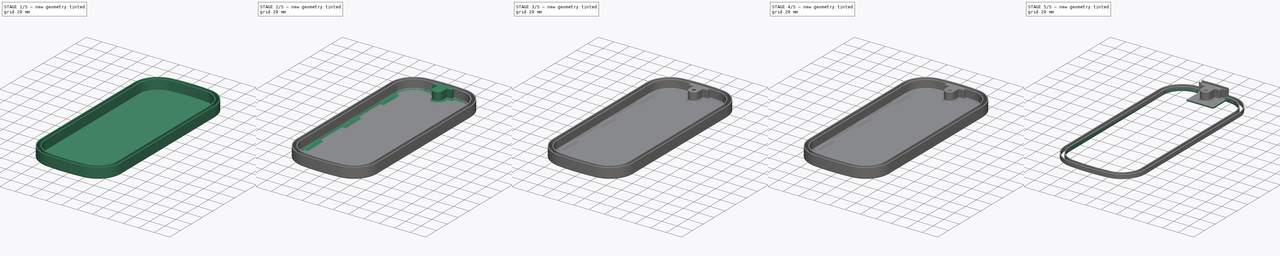
[diagram: build sequence overview — one tinted view per stage of 5, left to right]
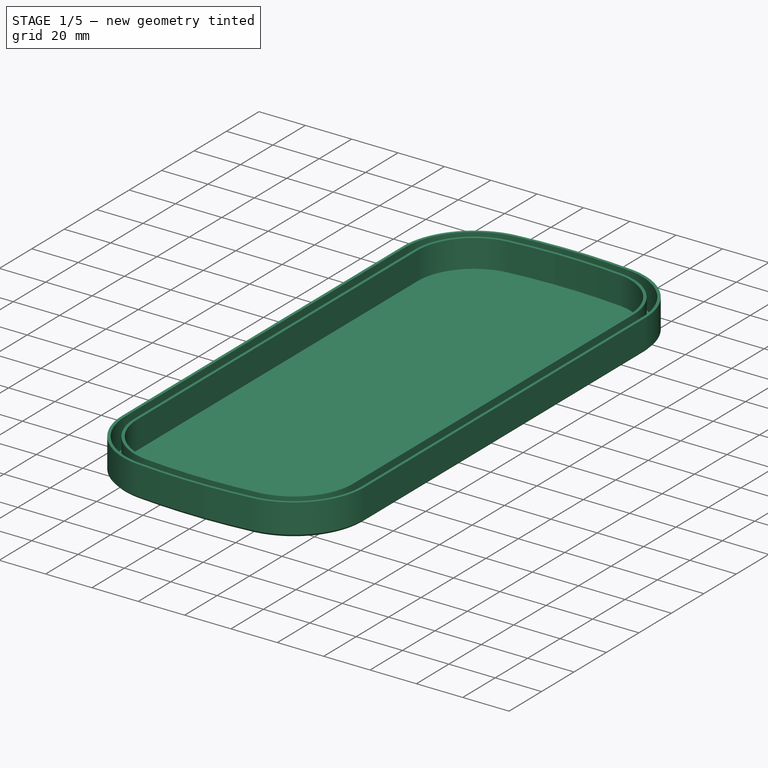
[diagram: stage 1 of 5 — iso view after this stage's code; geometry added in this stage tinted green]
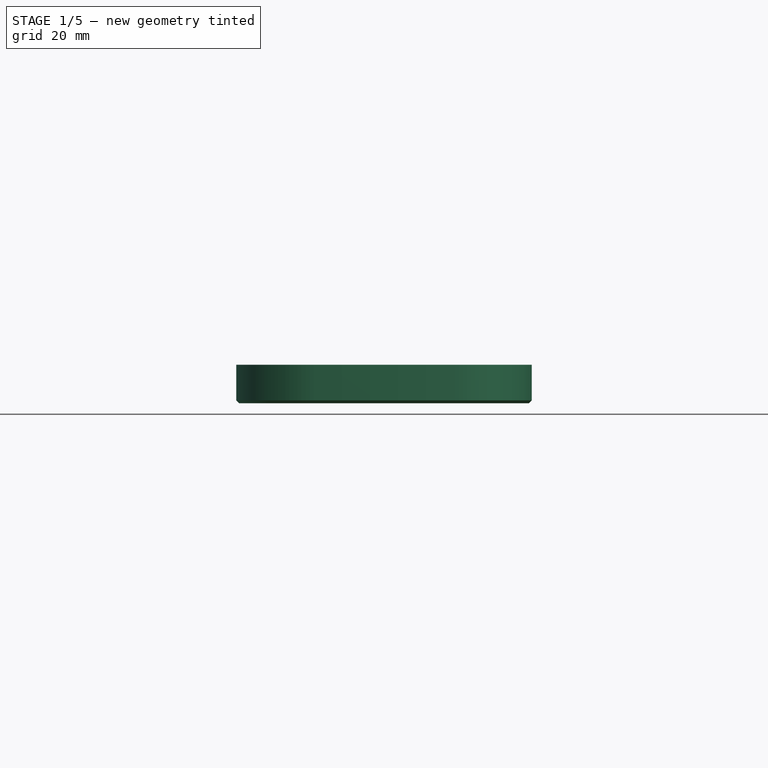
[diagram: stage 1 of 5 — front view after this stage's code; geometry added in this stage tinted green]
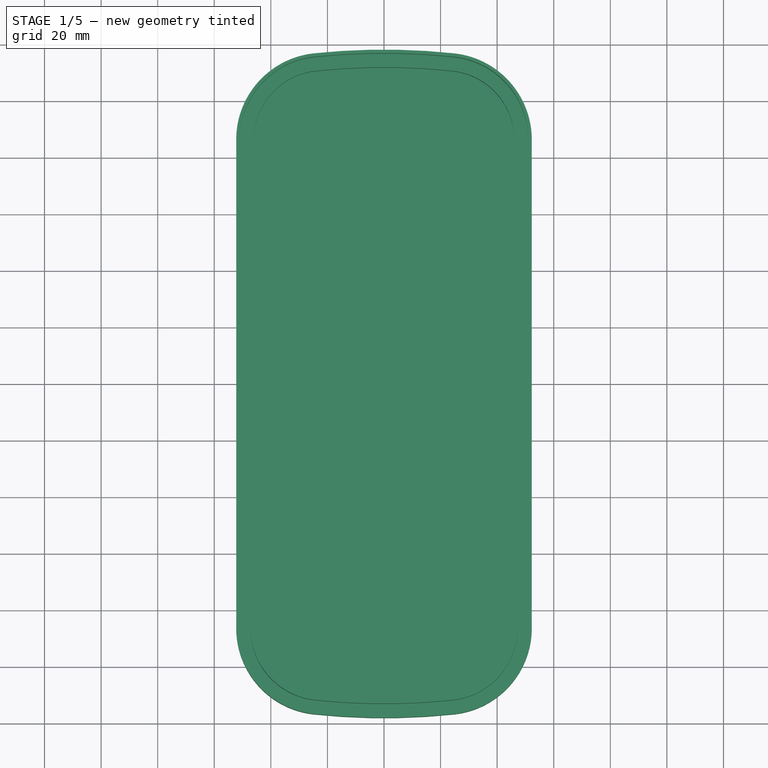
[diagram: stage 1 of 5 — top view after this stage's code; geometry added in this stage tinted green]
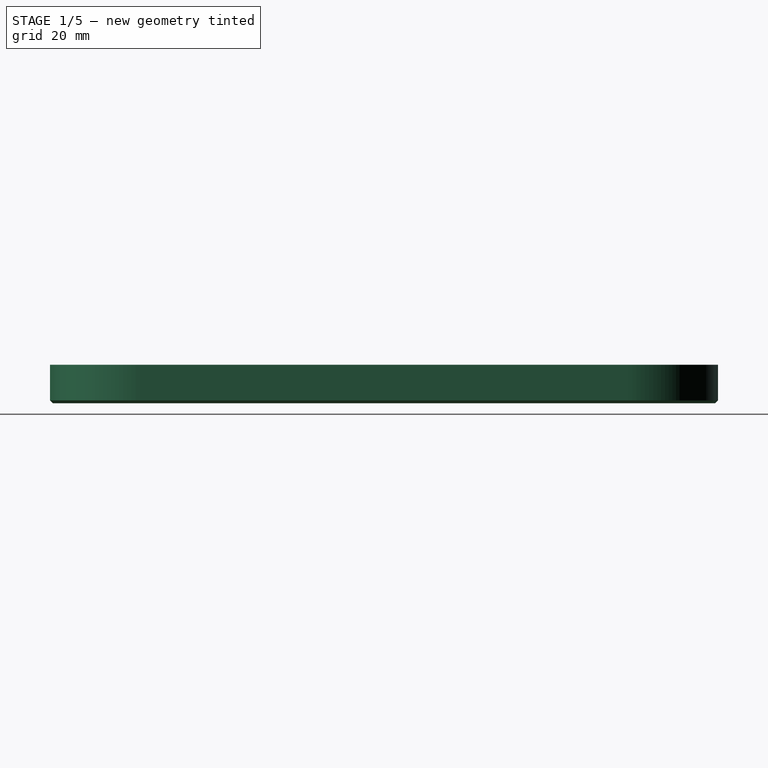
[diagram: stage 1 of 5 — right view after this stage's code; geometry added in this stage tinted green]
FCSTD DOCUMENT  (FreeCAD 1.1R44874 (Git))
Label: DryBoxLid
License: All rights reserved
LicenseURL: https://en.wikipedia.org/wiki/All_rights_reserved
objects: Sketcher::SketchObject×12, PartDesign::Pad×6, App::Point×4, PartDesign::Body×4, PartDesign::ShapeBinder×4, PartDesign::Chamfer×4, PartDesign::Pocket×3, Spreadsheet::Sheet×2, PartDesign::Fillet×1, PartDesign::Hole×1, PartDesign::FeatureBase×1
note: 79 computed .brp shape members not serialized (recipe doc carries the construction recipe); baked Part::Feature solids carry a one-line shape summary decoded from their .brp

FEATURE [PartDesign::Body] Body001  label="LidTest"
  AllowCompound = true
  Group = -> [ShapeBinder,Sketch006,Pad003,Sketch007,Pad004]
  Origin = -> Origin002
  Tip = -> Pad004
FEATURE [PartDesign::ShapeBinder] ShapeBinder002
  Support = -> [Sketch008]
  TraceSupport = false
FEATURE [Sketcher::SketchObject] Sketch009  label="Base"
  ArcFitTolerance = 1e-06
  AttachmentSupport = -> [Origin004]
  ExternalGeometry = -> [ShapeBinder002]
  ExternalTypes = [0,0,0,0,0,0,0,0]
  FullyConstrained = true
  MakeInternals = false
  MapMode = 5
  _ExternalGeoVersion = 1
FEATURE [PartDesign::Pad] Pad005  label="Base_"
  Direction = (0,0,1)
  Length = 1.6
  Length2 = 10
  Profile = -> Sketch009
  ReferenceAxis = -> Sketch009 [N_Axis]
  Refine = true
  SideType = 0
  Suppressed = false
  Type = 0
  Type2 = 0
  expr: Length = <<Lid_>>.Thickness
FEATURE [Sketcher::SketchObject] Sketch010  label="Rim"
  ArcFitTolerance = 1e-06
  AttachmentOffset = pos=(0,0,1.6) rot=(0,0,1;0rad)
  AttachmentSupport = -> [Origin004]
  ExternalGeometry = -> [ShapeBinder002]
  ExternalTypes = [0,0,0,0,0,0,0,0,0,0,0,0,0,0,0,0,0,0,0,0,0,0,0,0,0,0,0,0,0,0,0,0]
  FullyConstrained = true
  MakeInternals = false
  MapMode = 5
  Placement = pos=(0,0,1.6) rot=(0,0,1;0rad)
  _ExternalGeoVersion = 1
  expr: .AttachmentOffset.Base.z = <<Base_>>.Length
FEATURE [PartDesign::Chamfer] Chamfer001
  Angle = 45
  Base = -> Pad005 [Edge12]
  BaseFeature = -> Pad005
  ChamferType = 0
  FlipDirection = false
  Refine = true
  Size = 1
  Size2 = 1
  SupportTransform = false
  Suppressed = false
  UseAllEdges = false
FEATURE [PartDesign::Pad] Pad006  label="Rim_"
  BaseFeature = -> Chamfer001
  Direction = (0,0,1)
  Length = 12
  Length2 = 10
  Profile = -> Sketch010
  ReferenceAxis = -> Sketch010 [N_Axis]
  Refine = true
  SideType = 0
  Suppressed = false
  Type = 0
  Type2 = 0
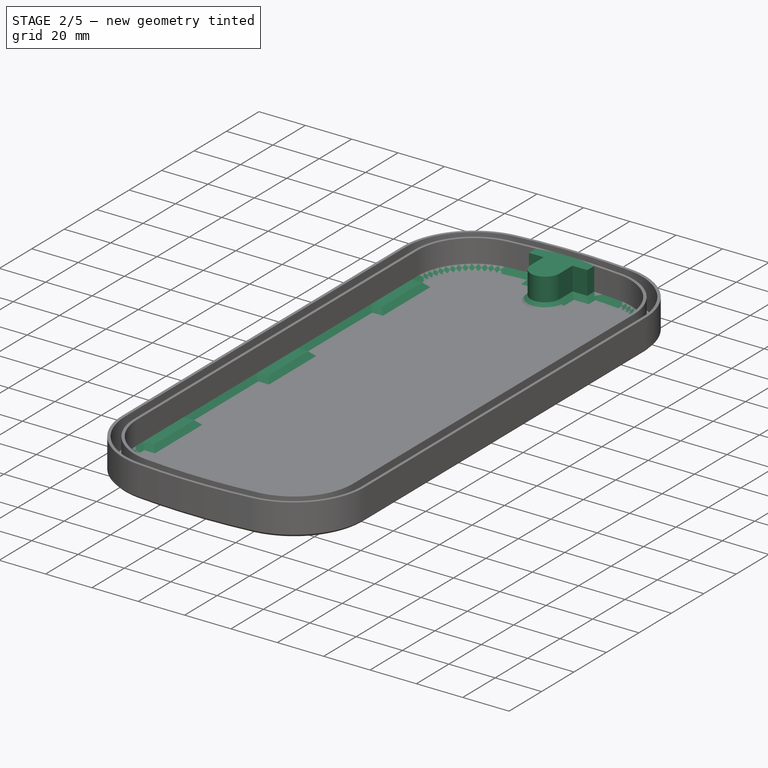
[diagram: stage 2 of 5 — iso view after this stage's code; geometry added in this stage tinted green]
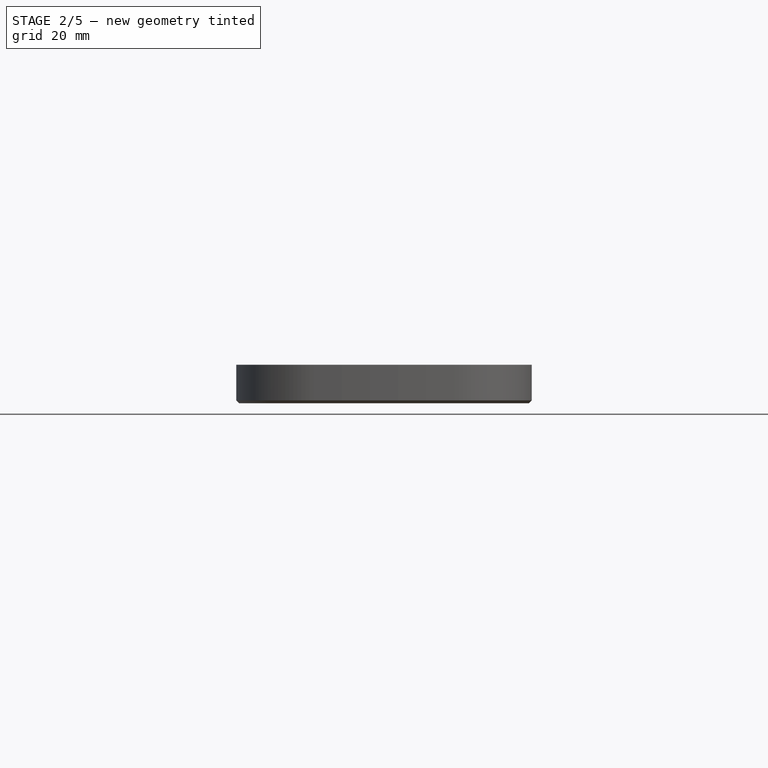
[diagram: stage 2 of 5 — front view after this stage's code; geometry added in this stage tinted green]
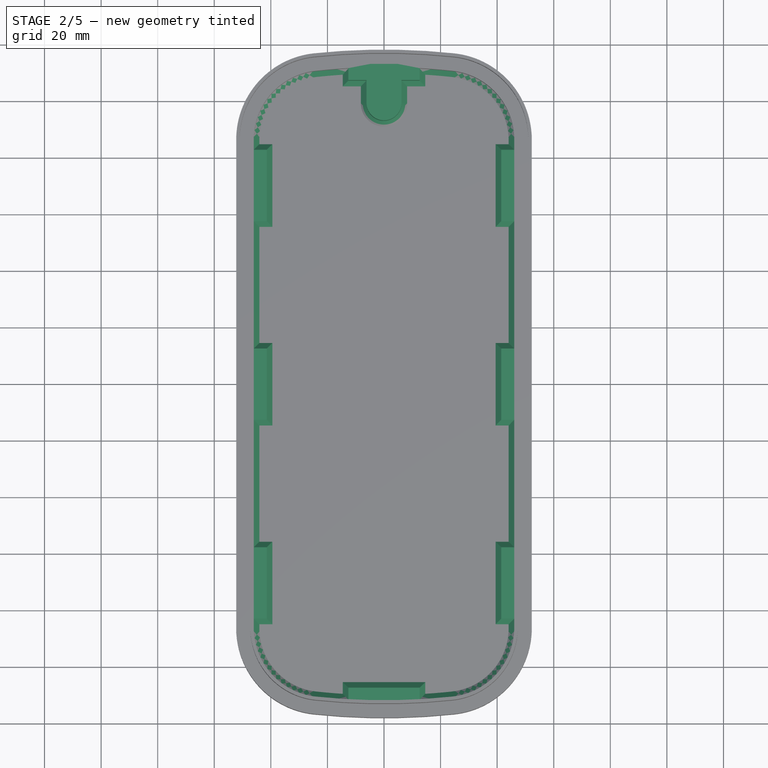
[diagram: stage 2 of 5 — top view after this stage's code; geometry added in this stage tinted green]
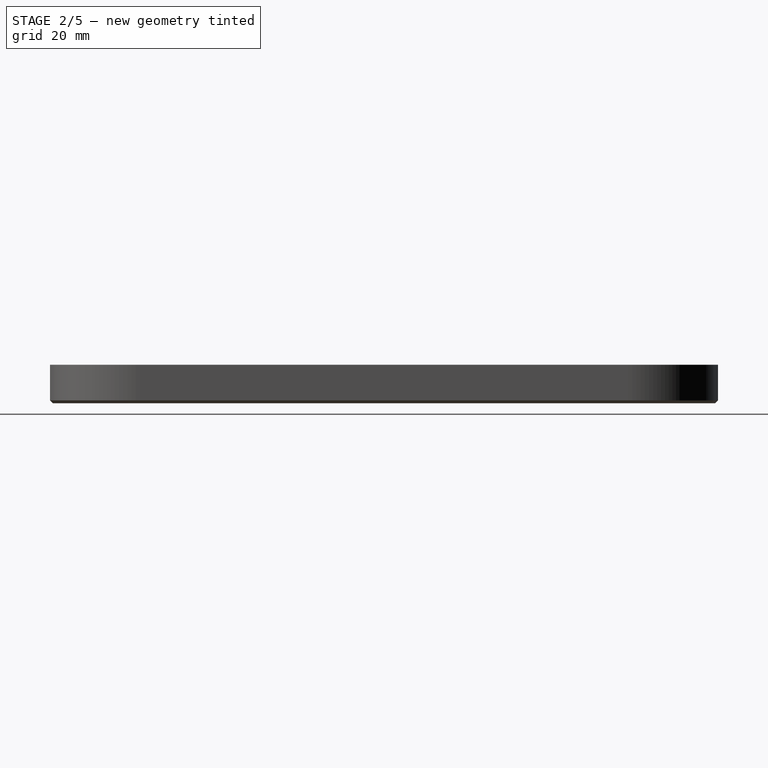
[diagram: stage 2 of 5 — right view after this stage's code; geometry added in this stage tinted green]
FEATURE [Sketcher::SketchObject] Sketch011  label="ClutchBumps"
  ArcFitTolerance = 1e-06
  AttachmentOffset = pos=(0,0,1.6) rot=(0,0,1;0rad)
  AttachmentSupport = -> [Sketch008]
  ExternalGeometry = -> [Sketch008]
  ExternalTypes = [0,0,0,0,0,0,0,0,0,0,0,0,0,0,0,0,0,0,0,0,0,0]
  FullyConstrained = true
  MakeInternals = false
  MapMode = 2
  Placement = pos=(0,0,1.6) rot=(0,0,1;0rad)
  _ExternalGeoVersion = 1
  expr: .AttachmentOffset.Base.z = <<Base_>>.Length
  sketch-geometry (6):
    g0: LineSegment StartX=46.0453 StartY=-82.85 StartZ=0 EndX=46.0453 EndY=-57.65 EndZ=0
    g1: LineSegment StartX=-46.0453 StartY=-82.85 StartZ=0 EndX=-46.0453 EndY=-57.65 EndZ=0
    g2: LineSegment StartX=-46.0453 StartY=-12.6 StartZ=0 EndX=-46.0453 EndY=12.6 EndZ=0
    g3: LineSegment StartX=46.0453 StartY=-12.6 StartZ=0 EndX=46.0453 EndY=12.6 EndZ=0
    g4: LineSegment StartX=46.0453 StartY=57.65 StartZ=0 EndX=46.0453 EndY=82.85 EndZ=0
    g5: LineSegment StartX=-46.0453 StartY=57.65 StartZ=0 EndX=-46.0453 EndY=82.85 EndZ=0
  constraints (12):
    c: Coincident(g0,g-22)
    c: Coincident(g0,g-24)
    c: Coincident(g1,g-17)
    c: Coincident(g1,g-15)
    c: Coincident(g2,g-12)
    c: Coincident(g2,g-14)
    c: Coincident(g3,g-11)
    c: Coincident(g3,g-9)
    c: Coincident(g4,g-8)
    c: Coincident(g4,g-6)
    c: Coincident(g5,g-5)
    c: Coincident(g5,g-3)
FEATURE [PartDesign::Pad] Pad007  label="ClutchBumps_"
  BaseFeature = -> Pad006
  Direction = (0,0,1)
  Length = 2
  Length2 = 10
  Profile = -> Sketch011
  ReferenceAxis = -> Sketch011 [N_Axis]
  Refine = true
  SideType = 0
  Suppressed = false
  Type = 0
  Type2 = 0
FEATURE [Sketcher::SketchObject] Sketch012  label="ClutchHoles"
  ArcFitTolerance = 1e-06
  AttachmentSupport = -> [Origin004]
  ExternalGeometry = -> [ShapeBinder002]
  ExternalTypes = [0,0,0,0,0,0,0,0,0,0,0,0,0,0,0,0,0,0,0,0,0,0,0,0,0,0,0,0,0,0,0,0]
  FullyConstrained = true
  MakeInternals = false
  MapMode = 5
  _ExternalGeoVersion = 1
FEATURE [Sketcher::SketchObject] Sketch013  label="InterfaceBump"
  ArcFitTolerance = 1e-06
  AttachmentOffset = pos=(0,0,1.6) rot=(0,0,1;0rad)
  AttachmentSupport = -> [Sketch008]
  ExternalGeometry = -> [Sketch008]
  ExternalTypes = [0,0,0,0,0,0,0,0]
  FullyConstrained = true
  MakeInternals = false
  MapMode = 2
  Placement = pos=(0,0,1.6) rot=(0,0,1;0rad)
  _ExternalGeoVersion = 1
  expr: .AttachmentOffset.Base.z = <<Base_>>.Length
FEATURE [PartDesign::Pad] Pad  label="InterfaceBump_"
  BaseFeature = -> Pad007
  Direction = (0,0,1)
  Length = 12
  Length2 = 10
  Profile = -> Sketch013
  ReferenceAxis = -> Sketch013 [N_Axis]
  Refine = true
  SideType = 0
  Suppressed = false
  Type = 0
  Type2 = 0
  expr: Length = <<Rim_>>.Length
FEATURE [PartDesign::Chamfer] Chamfer002
  Angle = 45
  Base = -> Pad [Face46]
  BaseFeature = -> Pad
  ChamferType = 0
  FlipDirection = false
  Refine = true
  Size = 1.99
  Size2 = 1
  SupportTransform = false
  Suppressed = false
  UseAllEdges = false
  expr: Size = <<ClutchBumps_>>.Length - 0.01 mm
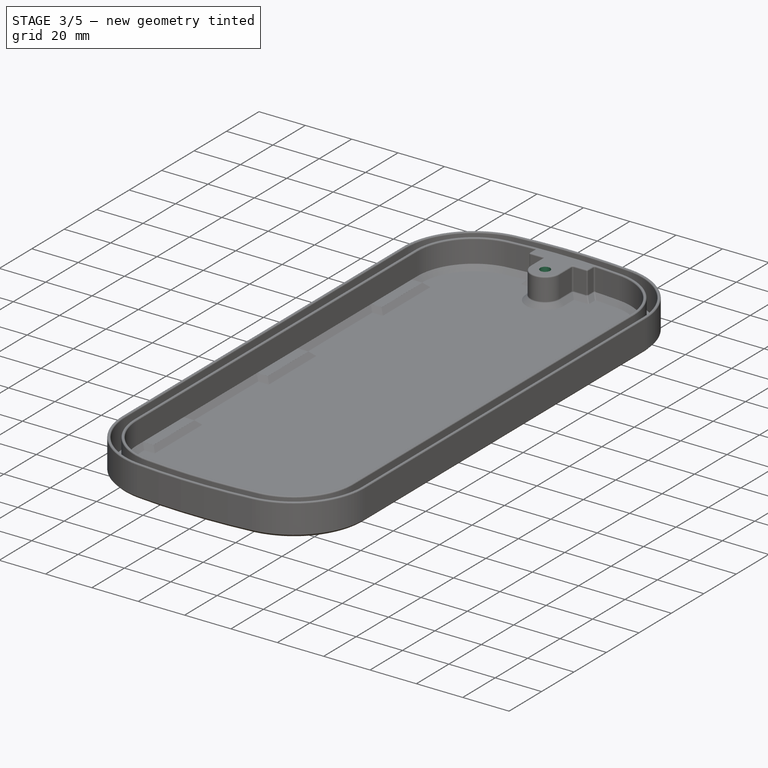
[diagram: stage 3 of 5 — iso view after this stage's code; geometry added in this stage tinted green]
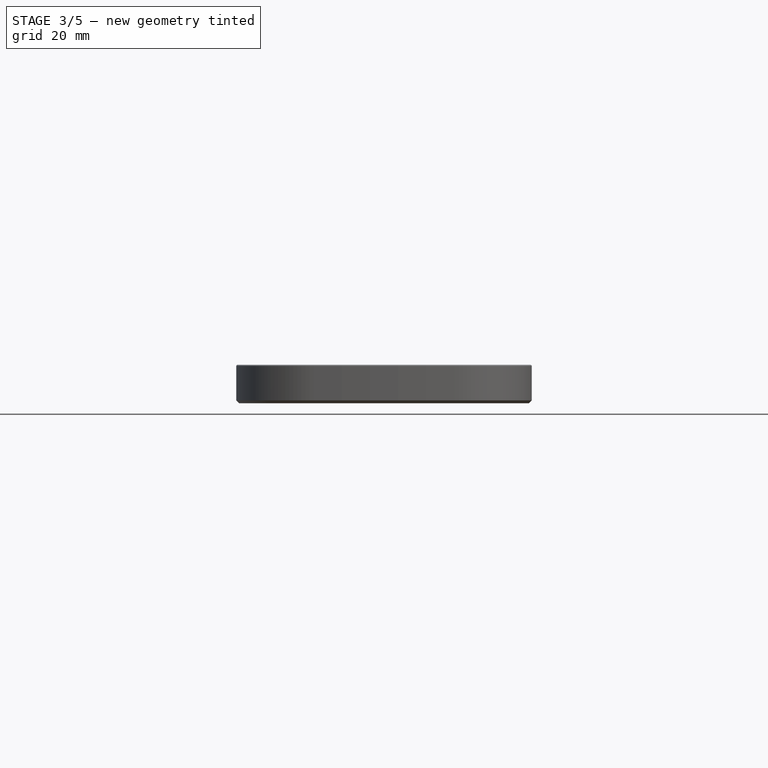
[diagram: stage 3 of 5 — front view after this stage's code; geometry added in this stage tinted green]
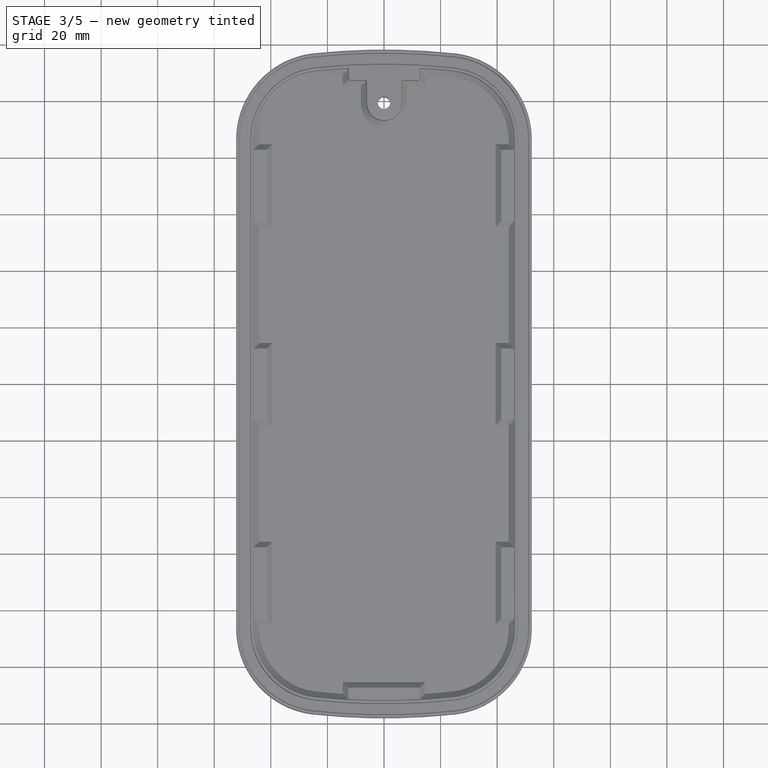
[diagram: stage 3 of 5 — top view after this stage's code; geometry added in this stage tinted green]
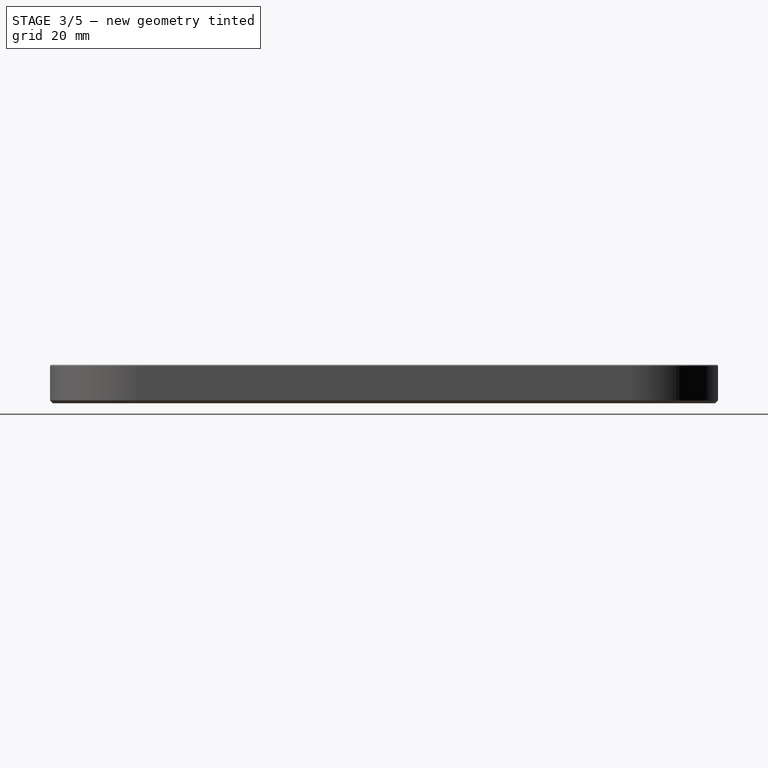
[diagram: stage 3 of 5 — right view after this stage's code; geometry added in this stage tinted green]
FEATURE [PartDesign::Fillet] Fillet002
  Base = -> Chamfer002 [Face4,Face108,Edge4,Edge147,Edge179,Edge181,Edge146,Edge8,Edge52,Edge33,Edge34,Edge148,Edge145,Edge144,Edge143,Edge137,Edge138,Edge178]
  BaseFeature = -> Chamfer002
  Radius = 0.5
  Refine = true
  SupportTransform = false
  Suppressed = false
  UseAllEdges = false
FEATURE [PartDesign::Pocket] Pocket001  label="ClutchHoles_"
  BaseFeature = -> Fillet002
  Direction = (0,0,-1)
  Length = 2
  Length2 = 5
  Profile = -> Sketch012
  ReferenceAxis = -> Sketch012 [N_Axis]
  Refine = true
  Reversed = true
  SideType = 0
  Suppressed = false
  Type = 0
  Type2 = 0
  expr: Length = <<ClutchBumps_>>.Length
FEATURE [PartDesign::Chamfer] Chamfer003
  Angle = 45
  Base = -> Pocket001 [Edge472,Edge471,Edge473,Edge470,Edge476,Edge477,Edge475,Edge474,Edge488,Edge489,Edge486,Edge487,Edge484,Edge485,Edge482,Edge483,Edge481,Edge478,Edge479,Edge480,Edge469,Edge466,Edge467,Edge468,Edge459,Edge458,Edge461,Edge460,Edge465,Edge463,Edge462,Edge464]
  BaseFeature = -> Pocket001
  ChamferType = 0
  FlipDirection = false
  Refine = true
  Size = 1.99
  Size2 = 1
  SupportTransform = false
  Suppressed = false
  UseAllEdges = false
  expr: Size = <<ClutchHoles_>>.Length - 0.01 mm
FEATURE [Sketcher::SketchObject] Sketch014  label="InterfaceHole"
  ArcFitTolerance = 1e-06
  AttachmentSupport = -> [Origin004]
  ExternalGeometry = -> [Sketch008]
  ExternalTypes = [0,0]
  FullyConstrained = true
  MakeInternals = false
  MapMode = 5
  _ExternalGeoVersion = 1
FEATURE [PartDesign::Pocket] Pocket  label="InterfaceHole_"
  BaseFeature = -> Chamfer003
  Direction = (0,0,-1)
  Length = 5
  Length2 = 5
  Profile = -> Sketch014
  ReferenceAxis = -> Sketch014 [N_Axis]
  Refine = true
  Reversed = true
  SideType = 0
  Suppressed = false
  Type = 1
  Type2 = 0
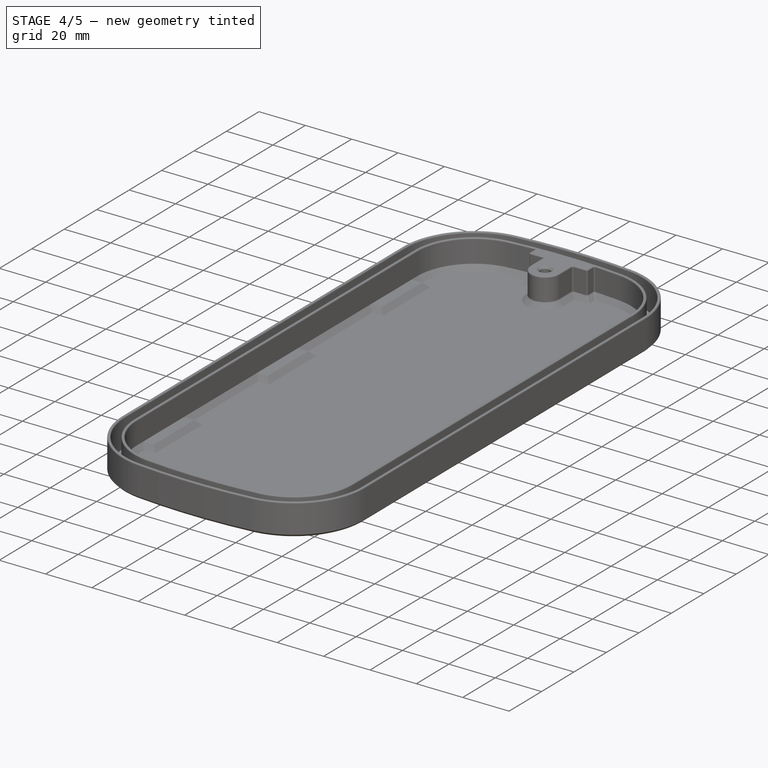
[diagram: stage 4 of 5 — iso view after this stage's code; geometry added in this stage tinted green]
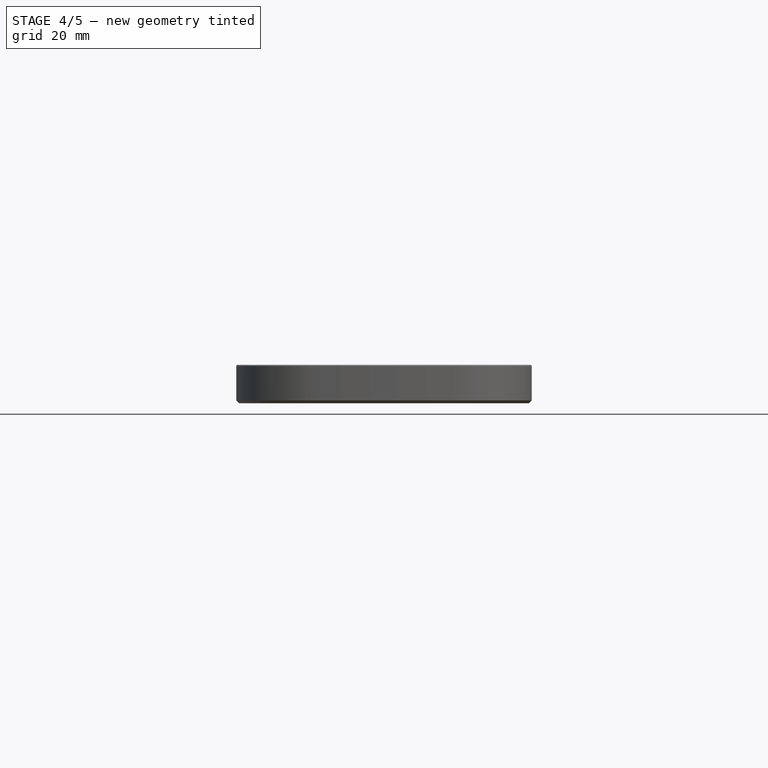
[diagram: stage 4 of 5 — front view after this stage's code; geometry added in this stage tinted green]
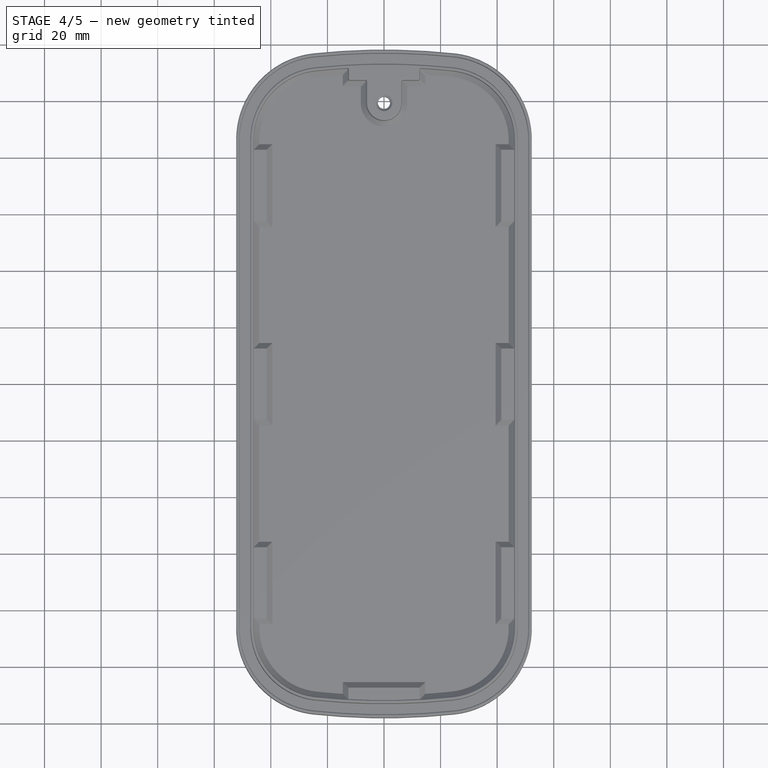
[diagram: stage 4 of 5 — top view after this stage's code; geometry added in this stage tinted green]
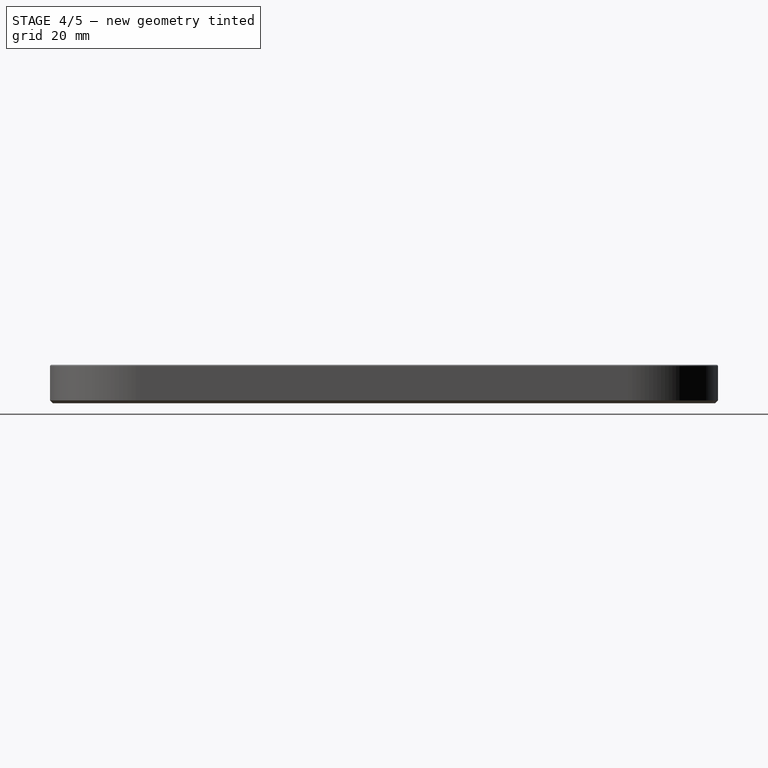
[diagram: stage 4 of 5 — right view after this stage's code; geometry added in this stage tinted green]
FEATURE [PartDesign::Chamfer] Chamfer
  Angle = 45
  Base = -> Pocket [Edge33,Edge107]
  BaseFeature = -> Pocket
  ChamferType = 0
  FlipDirection = false
  Refine = true
  Size = 0.8
  Size2 = 1
  SupportTransform = false
  Suppressed = false
  UseAllEdges = false
FEATURE [Sketcher::SketchObject] Sketch015  label="InterfaceThread"
  ArcFitTolerance = 1e-06
  AttachmentSupport = -> [Origin004]
  ExternalGeometry = -> [Sketch008]
  ExternalTypes = [0]
  FullyConstrained = true
  MakeInternals = false
  MapMode = 5
  _ExternalGeoVersion = 1
FEATURE [PartDesign::Hole] Hole  label="InterfaceThread_"
  BaseFeature = -> Chamfer
  BaseProfileType = 7
  CustomThreadClearance = 0
  Depth = 6
  DepthType = 0
  Diameter = 5.272
  DrillForDepth = false
  DrillPoint = 1
  DrillPointAngle = 90
  HoleCutCountersinkAngle = 90
  HoleCutCustomValues = false
  HoleCutDepth = 0
  HoleCutDiameter = 0
  HoleCutType = 0
  ModelThread = true
  Profile = -> Sketch015 [Edge1]
  Refine = true
  Reversed = true
  Suppressed = false
  Tapered = false
  TaperedAngle = 90
  ThreadClass = 0
  ThreadDepth = 6
  ThreadDepthType = 0
  ThreadDiameter = 6
  ThreadDirection = 0
  ThreadFit = 0
  ThreadSize = 15
  ThreadType = 2
  Threaded = true
  UseCustomThreadClearance = false
FEATURE [PartDesign::Body] Body002  label="Lid"
  AllowCompound = false
  Config = 0
  Group = -> [ShapeBinder001,Sketch008,ShapeBinder002,Sketch009,Pad005,Chamfer001,Sketch010,Pad006,Sketch011,Pad007,Sketch013,Pad,Chamfer002,Fillet002,Sketch012,Pocket001,Chamfer003,Sketch014,Pocket,Chamfer,Sketch015,Hole]
  Origin = -> Origin004
  Tip = -> Hole
  expr: .Config.Enum = Spreadsheet001.cells[<<A4:|>>]
FEATURE [App::Point] Origin009  label="Origin011"
  Role = Origin
FEATURE [PartDesign::FeatureBase] Clone
  BaseFeature = -> Body002
  Suppressed = false
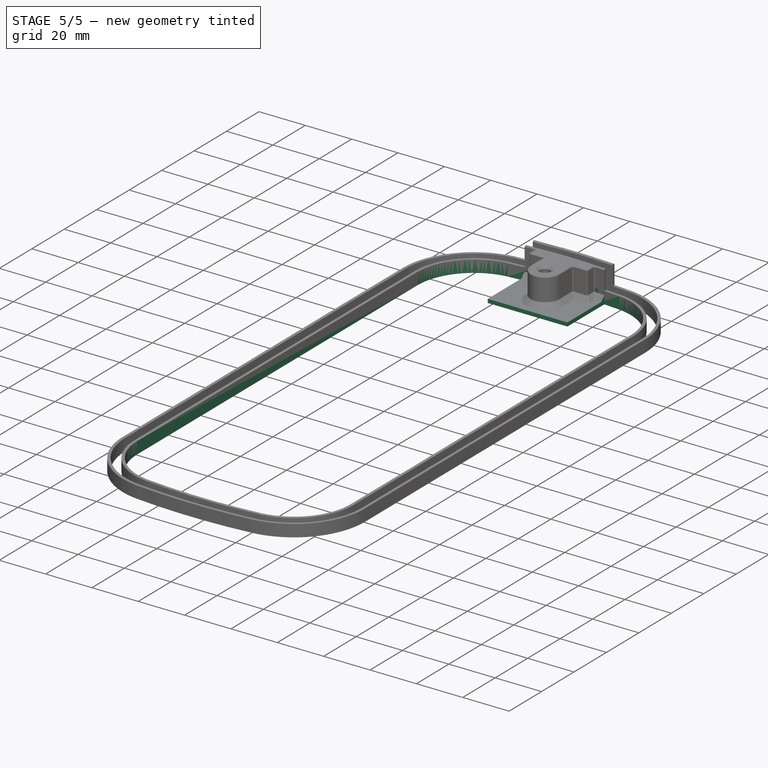
[diagram: stage 5 of 5 — iso view after this stage's code; geometry added in this stage tinted green]
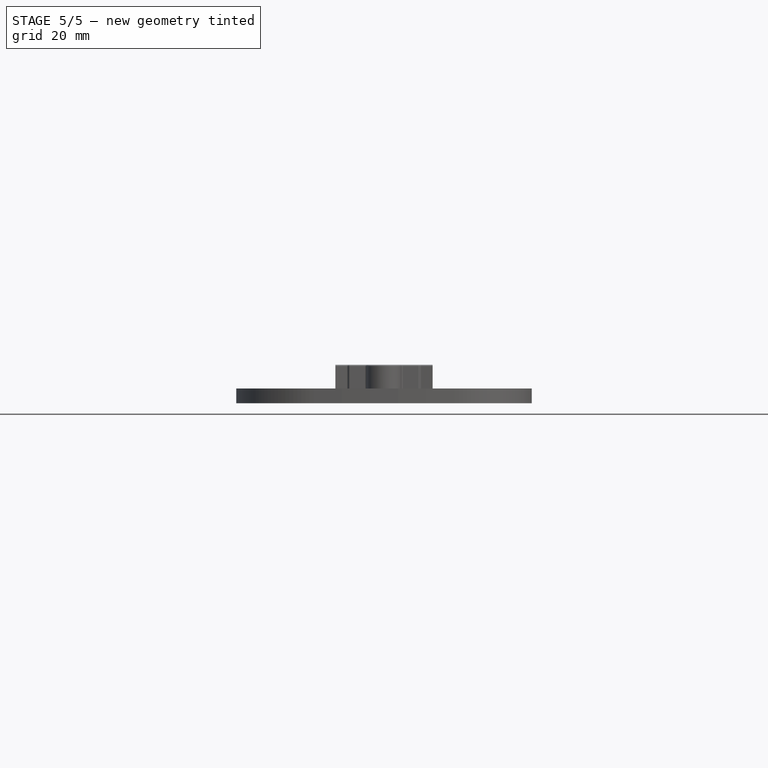
[diagram: stage 5 of 5 — front view after this stage's code; geometry added in this stage tinted green]
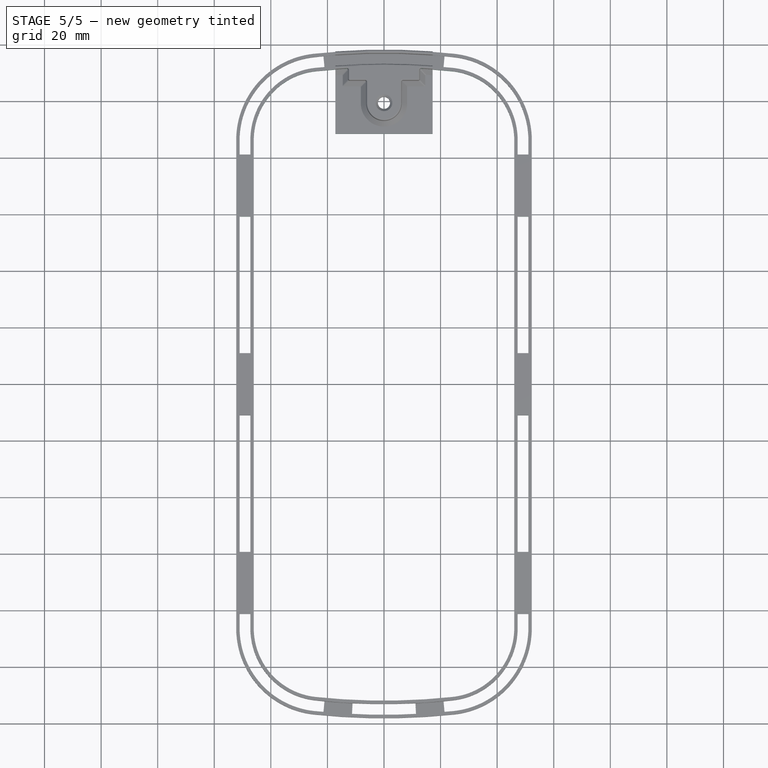
[diagram: stage 5 of 5 — top view after this stage's code; geometry added in this stage tinted green]
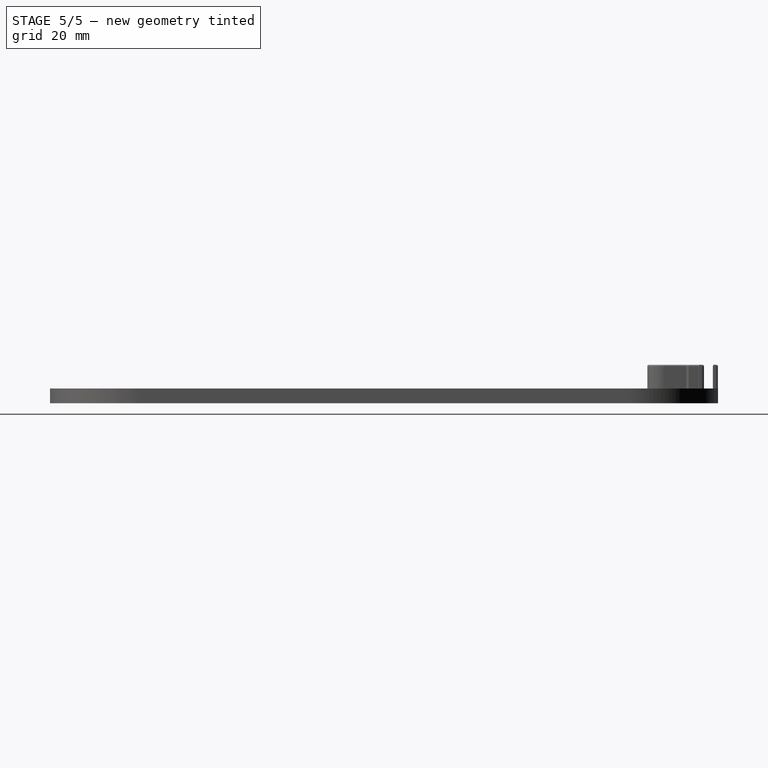
[diagram: stage 5 of 5 — right view after this stage's code; geometry added in this stage tinted green]
FEATURE [App::Point] Origin001
  Role = Origin
FEATURE [Sketcher::SketchObject] Sketch
  ArcFitTolerance = 1e-06
  AttachmentSupport = -> [Origin]
  ExternalTypes = [0]
  FullyConstrained = true
  MakeInternals = false
  MapMode = 5
  _ExternalGeoVersion = 1
  expr: .Constraints.Length = <<Contour_>>.Length
  expr: Constraints[12] = .Constraints.Length / <<Contour_>>.WidthRatio
  expr: Constraints[26] = .Constraints.Length / <<Contour_>>.CornerRatio
  sketch-geometry (10):
    g0: ArcOfCircle CenterX=0 CenterY=-115 CenterZ=0 NormalX=0 NormalY=0 NormalZ=1 AngleXU=0 Radius=230 StartAngle=1.46415 EndAngle=1.67745
    g1: ArcOfCircle CenterX=0 CenterY=115 CenterZ=0 NormalX=0 NormalY=0 NormalZ=1 AngleXU=0 Radius=230 StartAngle=4.60574 EndAngle=4.81904
    g2: LineSegment StartX=-49.1453 StartY=86.25 StartZ=0 EndX=-49.1453 EndY=-86.25 EndZ=0
    g3: LineSegment StartX=49.1453 StartY=86.25 StartZ=0 EndX=49.1453 EndY=-86.25 EndZ=0
    g4: LineSegment [constr] StartX=-49.1453 StartY=-86.25 StartZ=0 EndX=49.1453 EndY=-86.25 EndZ=0
    g5: LineSegment [constr] StartX=-49.1453 StartY=86.25 StartZ=0 EndX=49.1453 EndY=86.25 EndZ=0
    g6: ArcOfCircle CenterX=-21.5453 CenterY=86.25 CenterZ=0 NormalX=0 NormalY=0 NormalZ=1 AngleXU=0 Radius=27.6 StartAngle=1.67745 EndAngle=3.14159
    g7: ArcOfCircle CenterX=21.5453 CenterY=86.25 CenterZ=0 NormalX=0 NormalY=0 NormalZ=1 AngleXU=0 Radius=27.6 StartAngle=-9e-16 EndAngle=1.46415
    g8: ArcOfCircle CenterX=-21.5453 CenterY=-86.25 CenterZ=0 NormalX=0 NormalY=0 NormalZ=1 AngleXU=0 Radius=27.6 StartAngle=3.14159 EndAngle=4.60574
    g9: ArcOfCircle CenterX=21.5453 CenterY=-86.25 CenterZ=0 NormalX=0 NormalY=0 NormalZ=1 AngleXU=0 Radius=27.6 StartAngle=4.81904 EndAngle=6.28319
  constraints (29):
    c: PointOnObject(g0,g-2)
    c: Symmetric(g0,g1,g-1)
    c: Vertical(g3)
    c: Coincident(g4,g2)
    c: Coincident(g4,g3)
    c: Horizontal(g4)
    c: Coincident(g5,g2)
    c: Coincident(g5,g3)
    c: Symmetric(g2,g3,g-2)
    c: Symmetric(g2,g2,g-1)
    c: PointOnObject(g6,g5)
    c: Coincident(g6,g2)
    c: DistanceX(g2,g3) = 98.2906
    c: Tangent(g0,g6) = -1.5708
    c: Coincident(g7,g3)
    c: Tangent(g7,g0) = -1.5708
    c: PointOnObject(g0,g1)
    c: PointOnObject(g1,g0)
    c: DistanceY(g0,g1) = 230  'Length'
    c: PointOnObject(g8,g4)
    c: Coincident(g8,g2)
    c: Coincident(g9,g3)
    c: Tangent(g1,g9) = -1.5708
    c: Tangent(g1,g8) = -1.5708
    c: Equal(g7,g6)
    c: Equal(g8,g9)
    c: DistanceY(g2,g1) = 28.75
    c: Radius(g6) = 27.6
    c: DistanceY(g2,g2) = 172.5
FEATURE [PartDesign::Body] Body  label="Contour"
  AllowCompound = false
  Config = 0
  Group = -> [Sketch]
  Origin = -> Origin
  expr: .Config.Enum = Spreadsheet.cells[<<A4:|>>]
FEATURE [App::Point] Origin003
  Role = Origin
FEATURE [Spreadsheet::Sheet] Spreadsheet  label="Contour_"
  cells = A2='Variant; B2='Length; C2='WidthRatio; D2='CornerRatio; A3==hiddenref(Body.Config.String); B3(Length)==.B4; C3(WidthRatio)==.C4; D3(CornerRatio)==.D4; A4='AmazonOval; B4==230 mm; C4=2.34; D4=8; A5='AmazonTri; A6='AliSmall
  expr: .cells.Bind.B3.D3 = tuple(.cells; <<B>> + str(hiddenref(Body.Config) + 4); <<D>> + str(hiddenref(Body.Config) + 4))
FEATURE [App::Point] Origin005  label="Origin006"
  Role = Origin
FEATURE [PartDesign::ShapeBinder] ShapeBinder001
  Support = -> [Sketch]
  TraceSupport = false
FEATURE [Spreadsheet::Sheet] Spreadsheet001  label="Lid_"
  cells = B2='Thickness; C2='RimThickness; D2='GapWidth; A3==hiddenref(Body002.Config.String); B3(Thickness)==.B4; C3(RimThickness)==.C4; D3(GapWidth)==.D4; A4='Normal; B4==1.6 mm; C4==1.2 mm; D4==3.8 mm; A5='Narrow; A6='Wide
  expr: .cells.Bind.B3.D3 = tuple(.cells; <<B>> + str(hiddenref(Body002.Config) + 4); <<D>> + str(hiddenref(Body002.Config) + 4))
FEATURE [Sketcher::SketchObject] Sketch008  label="LidTemplate"
  ArcFitTolerance = 1e-06
  AttachmentSupport = -> [Origin004]
  ExternalGeometry = -> [ShapeBinder001]
  ExternalTypes = [0,0,0,0,0,0,0,0]
  FullyConstrained = true
  MakeInternals = false
  MapMode = 5
  _ExternalGeoVersion = 1
  expr: Constraints[19] = <<Lid_>>.GapWidth
  expr: Constraints[20] = <<Lid_>>.RimThickness
  expr: Constraints[228] = <<Lid_>>.Thickness
  sketch-geometry (136):
    g0: ArcOfCircle CenterX=0 CenterY=-115 CenterZ=0 NormalX=0 NormalY=0 NormalZ=1 AngleXU=0 Radius=231.9 StartAngle=1.46415 EndAngle=1.67745
    g1: ArcOfCircle CenterX=0 CenterY=-115 CenterZ=0 NormalX=0 NormalY=0 NormalZ=1 AngleXU=0 Radius=233.1 StartAngle=1.46415 EndAngle=1.67745
    g2: ArcOfCircle CenterX=0 CenterY=-115 CenterZ=0 NormalX=0 NormalY=0 NormalZ=1 AngleXU=0 Radius=228.1 StartAngle=1.46415 EndAngle=1.67745
    g3: ArcOfCircle CenterX=0 CenterY=-115 CenterZ=0 NormalX=0 NormalY=0 NormalZ=1 AngleXU=0 Radius=226.9 StartAngle=1.46415 EndAngle=1.67745
    g4: ArcOfCircle CenterX=0 CenterY=115 CenterZ=0 NormalX=0 NormalY=0 NormalZ=1 AngleXU=0 Radius=233.1 StartAngle=4.60574 EndAngle=4.81904
    g5: ArcOfCircle CenterX=0 CenterY=115 CenterZ=0 NormalX=0 NormalY=0 NormalZ=1 AngleXU=0 Radius=231.9 StartAngle=4.60574 EndAngle=4.81904
    g6: ArcOfCircle CenterX=0 CenterY=115 CenterZ=0 NormalX=0 NormalY=0 NormalZ=1 AngleXU=0 Radius=228.1 StartAngle=4.60574 EndAngle=4.81904
    g7: ArcOfCircle CenterX=0 CenterY=115 CenterZ=0 NormalX=0 NormalY=0 NormalZ=1 AngleXU=0 Radius=226.9 StartAngle=4.60574 EndAngle=4.81904
    g8: LineSegment [constr] StartX=0 StartY=116.9 StartZ=0 EndX=0 EndY=113.1 EndZ=0
    g9: LineSegment [constr] StartX=0 StartY=116.9 StartZ=0 EndX=0 EndY=118.1 EndZ=0
    g10: LineSegment [constr] StartX=0 StartY=113.1 StartZ=0 EndX=0 EndY=111.9 EndZ=0
    g11: LineSegment [constr] StartX=-21.5453 StartY=86.25 StartZ=0 EndX=-24.8133 EndY=116.776 EndZ=0
    g12: LineSegment [constr] StartX=21.5453 StartY=86.25 StartZ=0 EndX=24.8133 EndY=116.776 EndZ=0
    g13: LineSegment [constr] StartX=-21.5453 StartY=86.25 StartZ=0 EndX=-52.2453 EndY=86.25 EndZ=0
    g14: LineSegment [constr] StartX=21.5453 StartY=86.25 StartZ=0 EndX=52.2453 EndY=86.25 EndZ=0
    g15: ArcOfCircle CenterX=-21.5453 CenterY=86.25 CenterZ=0 NormalX=0 NormalY=0 NormalZ=1 AngleXU=0 Radius=30.7 StartAngle=1.67745 EndAngle=3.14159
    g16: ArcOfCircle CenterX=-21.5453 CenterY=86.25 CenterZ=0 NormalX=0 NormalY=0 NormalZ=1 AngleXU=0 Radius=29.5 StartAngle=1.67745 EndAngle=3.14159
    g17: ArcOfCircle CenterX=-21.5453 CenterY=86.25 CenterZ=0 NormalX=0 NormalY=0 NormalZ=1 AngleXU=0 Radius=25.7 StartAngle=1.67745 EndAngle=3.14159
    g18: ArcOfCircle CenterX=-21.5453 CenterY=86.25 CenterZ=0 NormalX=0 NormalY=0 NormalZ=1 AngleXU=0 Radius=24.5 StartAngle=1.67745 EndAngle=3.14159
    g19: ArcOfCircle CenterX=21.5453 CenterY=86.25 CenterZ=0 NormalX=0 NormalY=0 NormalZ=1 AngleXU=0 Radius=30.7 StartAngle=-9e-16 EndAngle=1.46415
    g20: ArcOfCircle CenterX=21.5453 CenterY=86.25 CenterZ=0 NormalX=0 NormalY=0 NormalZ=1 AngleXU=0 Radius=29.5 StartAngle=-1.8e-15 EndAngle=1.46415
    g21: ArcOfCircle CenterX=21.5453 CenterY=86.25 CenterZ=0 NormalX=0 NormalY=0 NormalZ=1 AngleXU=0 Radius=25.7 StartAngle=-9e-16 EndAngle=1.46415
    g22: ArcOfCircle CenterX=21.5453 CenterY=86.25 CenterZ=0 NormalX=0 NormalY=0 NormalZ=1 AngleXU=0 Radius=24.5 StartAngle=0 EndAngle=1.46415
    g23: LineSegment [constr] StartX=21.5453 StartY=-86.25 StartZ=0 EndX=52.2453 EndY=-86.25 EndZ=0
    g24: LineSegment [constr] StartX=21.5453 StartY=-86.25 StartZ=0 EndX=24.8133 EndY=-116.776 EndZ=0
    g25: LineSegment [constr] StartX=-21.5453 StartY=-86.25 StartZ=0 EndX=-24.8133 EndY=-116.776 EndZ=0
    g26: LineSegment [constr] StartX=-21.5453 StartY=-86.25 StartZ=0 EndX=-52.2453 EndY=-86.25 EndZ=0
    g27: ArcOfCircle CenterX=-21.5453 CenterY=-86.25 CenterZ=0 NormalX=0 NormalY=0 NormalZ=1 AngleXU=0 Radius=30.7 StartAngle=3.14159 EndAngle=4.60574
    g28: ArcOfCircle CenterX=-21.5453 CenterY=-86.25 CenterZ=0 NormalX=0 NormalY=0 NormalZ=1 AngleXU=0 Radius=29.5 StartAngle=3.14159 EndAngle=4.60574
    g29: ArcOfCircle CenterX=-21.5453 CenterY=-86.25 CenterZ=0 NormalX=0 NormalY=0 NormalZ=1 AngleXU=0 Radius=25.7 StartAngle=3.14159 EndAngle=4.60574
    g30: ArcOfCircle CenterX=-21.5453 CenterY=-86.25 CenterZ=0 NormalX=0 NormalY=0 NormalZ=1 AngleXU=0 Radius=24.5 StartAngle=3.14159 EndAngle=4.60574
    g31: ArcOfCircle CenterX=21.5453 CenterY=-86.25 CenterZ=0 NormalX=0 NormalY=0 NormalZ=1 AngleXU=0 Radius=30.7 StartAngle=4.81904 EndAngle=6.28319
    g32: ArcOfCircle CenterX=21.5453 CenterY=-86.25 CenterZ=0 NormalX=0 NormalY=0 NormalZ=1 AngleXU=0 Radius=29.5 StartAngle=4.81904 EndAngle=6.28319
    g33: ArcOfCircle CenterX=21.5453 CenterY=-86.25 CenterZ=0 NormalX=0 NormalY=0 NormalZ=1 AngleXU=0 Radius=25.7 StartAngle=4.81904 EndAngle=6.28319
    g34: ArcOfCircle CenterX=21.5453 CenterY=-86.25 CenterZ=0 NormalX=0 NormalY=0 NormalZ=1 AngleXU=0 Radius=24.5 StartAngle=4.81904 EndAngle=6.28319
    g35: LineSegment StartX=52.2453 StartY=86.25 StartZ=0 EndX=52.2453 EndY=-86.25 EndZ=0
    g36: LineSegment StartX=51.0453 StartY=86.25 StartZ=0 EndX=51.0453 EndY=-86.25 EndZ=0
    g37: LineSegment StartX=47.2453 StartY=86.25 StartZ=0 EndX=47.2453 EndY=-86.25 EndZ=0
    g38: LineSegment StartX=46.0453 StartY=86.25 StartZ=0 EndX=46.0453 EndY=-86.25 EndZ=0
    g39: LineSegment StartX=-46.0453 StartY=86.25 StartZ=0 EndX=-46.0453 EndY=-86.25 EndZ=0
    g40: LineSegment StartX=-47.2453 StartY=86.25 StartZ=0 EndX=-47.2453 EndY=-86.25 EndZ=0
    g41: LineSegment StartX=-51.0453 StartY=86.25 StartZ=0 EndX=-51.0453 EndY=-86.25 EndZ=0
    g42: LineSegment StartX=-52.2453 StartY=86.25 StartZ=0 EndX=-52.2453 EndY=-86.25 EndZ=0
    g43: LineSegment StartX=-11 StartY=110.3 StartZ=0 EndX=-11 EndY=108.9 EndZ=0
    g44: LineSegment StartX=-11 StartY=108.9 StartZ=0 EndX=11 EndY=108.9 EndZ=0
    g45: LineSegment StartX=11 StartY=108.9 StartZ=0 EndX=11 EndY=110.3 EndZ=0
    g46: LineSegment StartX=11 StartY=110.3 StartZ=0 EndX=-11 EndY=110.3 EndZ=0
    g47: LineSegment StartX=-44.4453 StartY=81.25 StartZ=0 EndX=-44.4453 EndY=59.25 EndZ=0
    g48: LineSegment StartX=-44.4453 StartY=59.25 StartZ=0 EndX=-43.0453 EndY=59.25 EndZ=0
    g49: LineSegment StartX=-43.0453 StartY=59.25 StartZ=0 EndX=-43.0453 EndY=81.25 EndZ=0
    g50: LineSegment StartX=-43.0453 StartY=81.25 StartZ=0 EndX=-44.4453 EndY=81.25 EndZ=0
    g51: LineSegment StartX=43.0453 StartY=81.25 StartZ=0 EndX=43.0453 EndY=59.25 EndZ=0
    g52: LineSegment StartX=43.0453 StartY=59.25 StartZ=0 EndX=44.4453 EndY=59.25 EndZ=0
    g53: LineSegment StartX=44.4453 StartY=59.25 StartZ=0 EndX=44.4453 EndY=81.25 EndZ=0
    g54: LineSegment StartX=44.4453 StartY=81.25 StartZ=0 EndX=43.0453 EndY=81.25 EndZ=0
    g55: LineSegment StartX=-44.4453 StartY=11 StartZ=0 EndX=-44.4453 EndY=-11 EndZ=0
    g56: LineSegment StartX=-44.4453 StartY=-11 StartZ=0 EndX=-43.0453 EndY=-11 EndZ=0
    g57: LineSegment StartX=-43.0453 StartY=-11 StartZ=0 EndX=-43.0453 EndY=11 EndZ=0
    g58: LineSegment StartX=-43.0453 StartY=11 StartZ=0 EndX=-44.4453 EndY=11 EndZ=0
    g59: LineSegment StartX=43.0453 StartY=11 StartZ=0 EndX=43.0453 EndY=-11 EndZ=0
    g60: LineSegment StartX=43.0453 StartY=-11 StartZ=0 EndX=44.4453 EndY=-11 EndZ=0
    g61: LineSegment StartX=44.4453 StartY=-11 StartZ=0 EndX=44.4453 EndY=11 EndZ=0
    g62: LineSegment StartX=44.4453 StartY=11 StartZ=0 EndX=43.0453 EndY=11 EndZ=0
    g63: LineSegment StartX=-44.4453 StartY=-59.25 StartZ=0 EndX=-44.4453 EndY=-81.25 EndZ=0
    g64: LineSegment StartX=-44.4453 StartY=-81.25 StartZ=0 EndX=-43.0453 EndY=-81.25 EndZ=0
    g65: LineSegment StartX=-43.0453 StartY=-81.25 StartZ=0 EndX=-43.0453 EndY=-59.25 EndZ=0
    g66: LineSegment StartX=-43.0453 StartY=-59.25 StartZ=0 EndX=-44.4453 EndY=-59.25 EndZ=0
    g67: LineSegment StartX=44.4453 StartY=-59.25 StartZ=0 EndX=43.0453 EndY=-59.25 EndZ=0
    g68: LineSegment StartX=43.0453 StartY=-59.25 StartZ=0 EndX=43.0453 EndY=-81.25 EndZ=0
    g69: LineSegment StartX=43.0453 StartY=-81.25 StartZ=0 EndX=44.4453 EndY=-81.25 EndZ=0
    g70: LineSegment StartX=44.4453 StartY=-81.25 StartZ=0 EndX=44.4453 EndY=-59.25 EndZ=0
    g71: LineSegment StartX=-11 StartY=-108.9 StartZ=0 EndX=-11 EndY=-110.3 EndZ=0
    g72: LineSegment StartX=-11 StartY=-110.3 StartZ=0 EndX=11 EndY=-110.3 EndZ=0
    g73: LineSegment StartX=11 StartY=-110.3 StartZ=0 EndX=11 EndY=-108.9 EndZ=0
    g74: LineSegment StartX=11 StartY=-108.9 StartZ=0 EndX=-11 EndY=-108.9 EndZ=0
    g75: LineSegment StartX=-12.6 StartY=111.9 StartZ=0 EndX=-12.6 EndY=107.3 EndZ=0
    g76: LineSegment StartX=-12.6 StartY=107.3 StartZ=0 EndX=-6.2 EndY=107.3 EndZ=0
    g77: LineSegment StartX=12.6 StartY=107.3 StartZ=0 EndX=12.6 EndY=111.9 EndZ=0
    g78: LineSegment StartX=12.6 StartY=111.9 StartZ=0 EndX=-12.6 EndY=111.9 EndZ=0
    g79: LineSegment [constr] StartX=-11 StartY=110.3 StartZ=0 EndX=-12.6 EndY=110.3 EndZ=0
    g80: LineSegment [constr] StartX=11 StartY=110.3 StartZ=0 EndX=11 EndY=111.9 EndZ=0
    g81: LineSegment [constr] StartX=11 StartY=108.9 StartZ=0 EndX=12.6 EndY=108.9 EndZ=0
    g82: LineSegment [constr] StartX=-11 StartY=108.9 StartZ=0 EndX=-11 EndY=107.3 EndZ=0
    g83: LineSegment StartX=-46.0453 StartY=57.65 StartZ=0 EndX=-41.4453 EndY=57.65 EndZ=0
    g84: LineSegment StartX=-41.4453 StartY=57.65 StartZ=0 EndX=-41.4453 EndY=82.85 EndZ=0
    g85: LineSegment StartX=-41.4453 StartY=82.85 StartZ=0 EndX=-46.0453 EndY=82.85 EndZ=0
    g86: LineSegment [constr] StartX=-44.4453 StartY=81.25 StartZ=0 EndX=-44.4453 EndY=82.85 EndZ=0
    g87: LineSegment [constr] StartX=-43.0453 StartY=81.25 StartZ=0 EndX=-41.4453 EndY=81.25 EndZ=0
    g88: LineSegment [constr] StartX=-43.0453 StartY=59.25 StartZ=0 EndX=-43.0453 EndY=57.65 EndZ=0
    g89: LineSegment [constr] StartX=-44.4453 StartY=59.25 StartZ=0 EndX=-46.0453 EndY=59.25 EndZ=0
    g90: LineSegment [constr] StartX=-41.4453 StartY=82.85 StartZ=0 EndX=-41.4453 EndY=86.25 EndZ=0
    g91: LineSegment StartX=-46.0453 StartY=-12.6 StartZ=0 EndX=-41.4453 EndY=-12.6 EndZ=0
    g92: LineSegment StartX=-41.4453 StartY=-12.6 StartZ=0 EndX=-41.4453 EndY=12.6 EndZ=0
    g93: LineSegment StartX=-41.4453 StartY=12.6 StartZ=0 EndX=-46.0453 EndY=12.6 EndZ=0
    g94: LineSegment [constr] StartX=-43.0453 StartY=11 StartZ=0 EndX=-43.0453 EndY=12.6 EndZ=0
    g95: LineSegment [constr] StartX=-44.4453 StartY=-11 StartZ=0 EndX=-44.4453 EndY=-12.6 EndZ=0
    g96: LineSegment StartX=-46.0453 StartY=-82.85 StartZ=0 EndX=-41.4453 EndY=-82.85 EndZ=0
    g97: LineSegment StartX=-41.4453 StartY=-82.85 StartZ=0 EndX=-41.4453 EndY=-57.65 EndZ=0
    g98: LineSegment StartX=-41.4453 StartY=-57.65 StartZ=0 EndX=-46.0453 EndY=-57.65 EndZ=0
    g99: LineSegment [constr] StartX=-43.0453 StartY=-59.25 StartZ=0 EndX=-43.0453 EndY=-57.65 EndZ=0
    g100: LineSegment [constr] StartX=-44.4453 StartY=-81.25 StartZ=0 EndX=-44.4453 EndY=-82.85 EndZ=0
    g101: LineSegment [constr] StartX=-41.4453 StartY=-82.85 StartZ=0 EndX=-41.4453 EndY=-86.25 EndZ=0
    g102: LineSegment StartX=-12.6 StartY=-107.3 StartZ=0 EndX=-12.6 EndY=-111.9 EndZ=0
    g103: LineSegment StartX=-12.6 StartY=-111.9 StartZ=0 EndX=12.6 EndY=-111.9 EndZ=0
    g104: LineSegment StartX=12.6 StartY=-111.9 StartZ=0 EndX=12.6 EndY=-107.3 EndZ=0
    g105: LineSegment StartX=12.6 StartY=-107.3 StartZ=0 EndX=-12.6 EndY=-107.3 EndZ=0
    g106: LineSegment [constr] StartX=-11 StartY=-108.9 StartZ=0 EndX=-11 EndY=-107.3 EndZ=0
    g107: LineSegment [constr] StartX=11 StartY=-108.9 StartZ=0 EndX=12.6 EndY=-108.9 EndZ=0
    g108: LineSegment [constr] StartX=11 StartY=-110.3 StartZ=0 EndX=11 EndY=-111.9 EndZ=0
    g109: LineSegment [constr] StartX=-11 StartY=-110.3 StartZ=0 EndX=-12.6 EndY=-110.3 EndZ=0
    g110: LineSegment StartX=41.4453 StartY=-57.65 StartZ=0 EndX=41.4453 EndY=-82.85 EndZ=0
    g111: LineSegment StartX=41.4453 StartY=-82.85 StartZ=0 EndX=46.0453 EndY=-82.85 EndZ=0
    g112: LineSegment StartX=46.0453 StartY=-57.65 StartZ=0 EndX=41.4453 EndY=-57.65 EndZ=0
    g113: LineSegment [constr] StartX=43.0453 StartY=-59.25 StartZ=0 EndX=43.0453 EndY=-57.65 EndZ=0
    g114: LineSegment [constr] StartX=44.4453 StartY=-59.25 StartZ=0 EndX=46.0453 EndY=-59.25 EndZ=0
    g115: LineSegment [constr] StartX=44.4453 StartY=-81.25 StartZ=0 EndX=44.4453 EndY=-82.85 EndZ=0
    g116: LineSegment [constr] StartX=43.0453 StartY=-81.25 StartZ=0 EndX=41.4453 EndY=-81.25 EndZ=0
    g117: LineSegment StartX=41.4453 StartY=12.6 StartZ=0 EndX=41.4453 EndY=-12.6 EndZ=0
    g118: LineSegment StartX=41.4453 StartY=-12.6 StartZ=0 EndX=46.0453 EndY=-12.6 EndZ=0
    g119: LineSegment StartX=46.0453 StartY=12.6 StartZ=0 EndX=41.4453 EndY=12.6 EndZ=0
    g120: LineSegment [constr] StartX=43.0453 StartY=11 StartZ=0 EndX=43.0453 EndY=12.6 EndZ=0
    g121: LineSegment [constr] StartX=44.4453 StartY=-11 StartZ=0 EndX=44.4453 EndY=-12.6 EndZ=0
    g122: LineSegment StartX=41.4453 StartY=82.85 StartZ=0 EndX=41.4453 EndY=57.65 EndZ=0
    g123: LineSegment StartX=41.4453 StartY=57.65 StartZ=0 EndX=46.0453 EndY=57.65 EndZ=0
    g124: LineSegment StartX=46.0453 StartY=82.85 StartZ=0 EndX=41.4453 EndY=82.85 EndZ=0
    g125: LineSegment [constr] StartX=44.4453 StartY=81.25 StartZ=0 EndX=44.4453 EndY=82.85 EndZ=0
    g126: LineSegment [constr] StartX=44.4453 StartY=59.25 StartZ=0 EndX=44.4453 EndY=57.65 EndZ=0
    g127: LineSegment [constr] StartX=0 StartY=-115 StartZ=0 EndX=0 EndY=-111.9 EndZ=0
    g128: Circle [constr] CenterX=0 CenterY=99.3 CenterZ=0 NormalX=0 NormalY=0 NormalZ=1 AngleXU=0 Radius=3
    g129: LineSegment [constr] StartX=0 StartY=96.3 StartZ=0 EndX=0 EndY=93.1 EndZ=0
    g130: Circle CenterX=0 CenterY=99.3 CenterZ=0 NormalX=0 NormalY=0 NormalZ=1 AngleXU=0 Radius=2.135
    g131: ArcOfCircle CenterX=0 CenterY=99.3 CenterZ=0 NormalX=0 NormalY=0 NormalZ=1 AngleXU=0 Radius=6.2 StartAngle=3.14159 EndAngle=6.28319
    g132: LineSegment StartX=-6.2 StartY=99.3 StartZ=0 EndX=-6.2 EndY=107.3 EndZ=0
    g133: LineSegment StartX=6.2 StartY=99.3 StartZ=0 EndX=6.2 EndY=107.3 EndZ=0
    g134: LineSegment [constr] StartX=-6.2 StartY=107.3 StartZ=0 EndX=6.2 EndY=107.3 EndZ=0
    g135: LineSegment StartX=6.2 StartY=107.3 StartZ=0 EndX=12.6 EndY=107.3 EndZ=0
  constraints (399):
    c: Coincident(g0,g-3)
    c: Coincident(g1,g0)
    c: Coincident(g2,g0)
    c: Coincident(g3,g0)
    c: Coincident(g4,g-7)
    c: Coincident(g5,g4)
    c: Coincident(g6,g4)
    c: Coincident(g7,g4)
    c: PointOnObject(g8,g0)
    c: PointOnObject(g8,g2)
    c: Vertical(g8)
    c: Symmetric(g8,g8,g4)
    c: Coincident(g9,g8)
    c: PointOnObject(g9,g1)
    c: Coincident(g10,g8)
    c: PointOnObject(g10,g3)
    c: Vertical(g10)
    c: Vertical(g9)
    c: Equal(g9,g10)
    c: DistanceY(g8,g8) = 3.8
    c: DistanceY(g9,g9) = 1.2
    c: Coincident(g11,g-4)
    c: Coincident(g11,g1)
    c: Coincident(g12,g-5)
    c: Coincident(g12,g1)
    c: PointOnObject(g-5,g12)
    c: PointOnObject(g-4,g11)
    c: PointOnObject(g0,g11)
    c: PointOnObject(g2,g11)
    c: PointOnObject(g3,g11)
    c: PointOnObject(g3,g12)
    c: PointOnObject(g2,g12)
    c: PointOnObject(g0,g12)
    c: Coincident(g13,g11)
    c: Coincident(g14,g12)
    c: PointOnObject(g-4,g13)
    c: PointOnObject(g-5,g14)
    c: Coincident(g15,g11)
    c: Coincident(g15,g1)
    c: Coincident(g15,g13)
    c: Coincident(g16,g11)
    c: Coincident(g16,g0)
    c: PointOnObject(g16,g13)
    c: Coincident(g17,g11)
    c: Coincident(g17,g2)
    c: PointOnObject(g17,g13)
    c: Coincident(g18,g11)
    c: Coincident(g18,g3)
    c: PointOnObject(g18,g13)
    c: Coincident(g19,g12)
    c: Coincident(g19,g1)
    c: Coincident(g19,g14)
    c: Coincident(g20,g12)
    c: Coincident(g20,g0)
    c: PointOnObject(g20,g14)
    c: Coincident(g21,g12)
    c: Coincident(g21,g2)
    c: PointOnObject(g21,g14)
    c: Coincident(g22,g12)
    c: Coincident(g22,g3)
    c: PointOnObject(g22,g14)
    c: Coincident(g23,g-6)
    c: Coincident(g24,g23)
    c: Coincident(g24,g4)
    c: Coincident(g25,g-8)
    c: Coincident(g25,g4)
    c: Coincident(g26,g25)
    c: PointOnObject(g-7,g24)
    c: PointOnObject(g-8,g25)
    c: PointOnObject(g5,g25)
    c: PointOnObject(g6,g25)
    c: PointOnObject(g7,g25)
    c: PointOnObject(g7,g24)
    c: PointOnObject(g5,g24)
    c: PointOnObject(g6,g24)
    c: PointOnObject(g-10,g23)
    c: PointOnObject(g-9,g26)
    c: Coincident(g27,g25)
    c: Coincident(g27,g4)
    c: Coincident(g27,g26)
    c: Coincident(g28,g25)
    c: Coincident(g28,g5)
    c: PointOnObject(g28,g26)
    c: Coincident(g29,g25)
    c: Coincident(g29,g6)
    c: PointOnObject(g29,g26)
    c: Coincident(g30,g25)
    c: Coincident(g30,g7)
    c: PointOnObject(g30,g26)
    c: Coincident(g31,g23)
    c: Coincident(g31,g4)
    c: Coincident(g31,g23)
    c: Coincident(g32,g23)
    c: Coincident(g32,g5)
    c: PointOnObject(g32,g23)
    c: Coincident(g33,g23)
    c: Coincident(g33,g6)
    c: PointOnObject(g33,g23)
    c: Coincident(g34,g23)
    c: Coincident(g34,g7)
    c: PointOnObject(g34,g23)
    c: Coincident(g35,g14)
    c: Coincident(g36,g20)
    c: Coincident(g37,g21)
    c: Coincident(g38,g22)
    c: Parallel(g-10,g38)
    c: Parallel(g-10,g37)
    c: Parallel(g-10,g35)
    c: Coincident(g37,g33)
    c: Coincident(g36,g32)
    c: Coincident(g35,g23)
    c: Coincident(g38,g34)
    c: Coincident(g39,g18)
    c: Coincident(g39,g30)
    c: Coincident(g40,g17)
    c: Coincident(g40,g29)
    c: Tangent(g41,g16) = -1.5708
    c: Coincident(g41,g28)
    c: Coincident(g42,g13)
    c: Coincident(g42,g26)
    c: Coincident(g43,g44)
    c: Coincident(g44,g45)
    c: Coincident(g45,g46)
    c: Coincident(g46,g43)
    c: Vertical(g43)
    c: Vertical(g45)
    c: Horizontal(g44)
    c: Horizontal(g46)
    c: DistanceY(g43,g43) = 1.4
    c: DistanceX(g44,g44) = 22
    c: Coincident(g47,g48)
    c: Coincident(g48,g49)
    c: Coincident(g49,g50)
    c: Coincident(g50,g47)
    c: Vertical(g47)
    c: Vertical(g49)
    c: Horizontal(g48)
    c: Horizontal(g50)
    c: Coincident(g51,g52)
    c: Coincident(g52,g53)
    c: Coincident(g53,g54)
    c: Coincident(g54,g51)
    c: Vertical(g51)
    c: Vertical(g53)
    c: Horizontal(g52)
    c: Horizontal(g54)
    c: Coincident(g55,g56)
    c: Coincident(g56,g57)
    c: Coincident(g57,g58)
    c: Coincident(g58,g55)
    c: Vertical(g57)
    c: Horizontal(g56)
    c: Horizontal(g58)
    c: Coincident(g59,g60)
    c: Coincident(g60,g61)
    c: Coincident(g61,g62)
    c: Coincident(g62,g59)
    c: Vertical(g59)
    c: Vertical(g61)
    c: Horizontal(g60)
    c: Horizontal(g62)
    c: Coincident(g63,g64)
    c: Coincident(g64,g65)
    c: Coincident(g65,g66)
    c: Coincident(g66,g63)
    c: Vertical(g63)
    c: Vertical(g65)
    c: Horizontal(g64)
    c: Horizontal(g66)
    c: Coincident(g67,g68)
    c: Coincident(g68,g69)
    c: Coincident(g69,g70)
    c: Coincident(g70,g67)
    c: Horizontal(g67)
    c: Horizontal(g69)
    c: Vertical(g68)
    c: Vertical(g70)
    c: Coincident(g71,g72)
    c: Coincident(g72,g73)
    c: Coincident(g73,g74)
    c: Coincident(g74,g71)
    c: Vertical(g71)
    c: Vertical(g73)
    c: Horizontal(g72)
    c: Horizontal(g74)
    c: Equal(g43,g50)
    c: Equal(g50,g54)
    c: Equal(g54,g58)
    c: Equal(g58,g62)
    c: Equal(g62,g66)
    c: Equal(g66,g67)
    c: Equal(g67,g73)
    c: Equal(g44,g49)
    c: Equal(g49,g51)
    c: Equal(g51,g57)
    c: Equal(g57,g59)
    c: Equal(g59,g65)
    c: Equal(g65,g68)
    c: Equal(g68,g74)
    c: PointOnObject(g51,g50)
    c: Symmetric(g55,g55,g-1)
    c: PointOnObject(g57,g49)
    c: PointOnObject(g59,g58)
    c: PointOnObject(g59,g51)
    c: PointOnObject(g65,g57)
    c: PointOnObject(g67,g59)
    c: PointOnObject(g68,g64)
    c: Coincident(g75,g76)
    c: Coincident(g135,g77)
    c: Coincident(g77,g78)
    c: Coincident(g78,g75)
    c: Vertical(g75)
    c: Vertical(g77)
    c: Horizontal(g78)
    c: Coincident(g79,g43)
    c: PointOnObject(g79,g75)
    c: Horizontal(g79)
    c: Coincident(g80,g45)
    c: PointOnObject(g80,g78)
    c: Vertical(g80)
    c: Coincident(g81,g44)
    c: PointOnObject(g81,g77)
    c: Horizontal(g81)
    c: Coincident(g82,g43)
    c: Vertical(g82)
    c: Equal(g79,g80)
    c: Equal(g80,g81)
    c: Equal(g81,g82)
    c: DistanceX(g75,g82) = 1.6
    c: Coincident(g83,g84)
    c: Coincident(g84,g85)
    c: Vertical(g84)
    c: Horizontal(g83)
    c: Horizontal(g85)
    c: Coincident(g86,g47)
    c: PointOnObject(g86,g85)
    c: Vertical(g86)
    c: Coincident(g87,g49)
    c: PointOnObject(g87,g84)
    c: Horizontal(g87)
    c: Coincident(g88,g48)
    c: PointOnObject(g88,g83)
    c: Vertical(g88)
    c: Coincident(g89,g47)
    c: Horizontal(g89)
    c: Equal(g82,g86)
    c: Equal(g86,g87)
    c: Equal(g87,g88)
    c: Equal(g88,g89)
    c: PointOnObject(g90,g13)
    c: Vertical(g90)
    c: DistanceY(g47,g13) = 5
    c: Coincident(g91,g92)
    c: Coincident(g92,g93)
    c: Vertical(g92)
    c: Horizontal(g91)
    c: Horizontal(g93)
    c: Coincident(g94,g57)
    c: PointOnObject(g94,g93)
    c: Vertical(g94)
    c: Coincident(g95,g55)
    c: PointOnObject(g95,g91)
    c: Vertical(g95)
    c: Equal(g89,g94)
    c: Equal(g94,g95)
    c: PointOnObject(g92,g84)
    c: Coincident(g96,g97)
    c: Coincident(g97,g98)
    c: Vertical(g97)
    c: Horizontal(g96)
    c: Horizontal(g98)
    c: Coincident(g99,g65)
    c: PointOnObject(g99,g98)
    c: Vertical(g99)
    c: Coincident(g100,g63)
    c: PointOnObject(g100,g96)
    c: Vertical(g100)
    c: Equal(g95,g99)
    c: Equal(g99,g100)
    c: PointOnObject(g101,g26)
    c: Vertical(g101)
    c: Equal(g101,g90)
    c: PointOnObject(g97,g92)
    c: Coincident(g102,g103)
    c: Coincident(g103,g104)
    c: Coincident(g104,g105)
    c: Coincident(g105,g102)
    c: Vertical(g102)
    c: Vertical(g104)
    c: Horizontal(g103)
    c: Horizontal(g105)
    c: Coincident(g106,g71)
    c: PointOnObject(g106,g105)
    c: Vertical(g106)
    c: Coincident(g107,g73)
    c: PointOnObject(g107,g104)
    c: Horizontal(g107)
    c: Coincident(g108,g72)
    c: PointOnObject(g108,g103)
    c: Vertical(g108)
    c: Coincident(g109,g71)
    c: PointOnObject(g109,g102)
    c: Horizontal(g109)
    c: Equal(g100,g109)
    c: Equal(g109,g106)
    c: Equal(g106,g107)
    c: Equal(g107,g108)
    c: Coincident(g110,g111)
    c: Coincident(g112,g110)
    c: Vertical(g110)
    c: Horizontal(g111)
    c: Horizontal(g112)
    c: Coincident(g113,g67)
    c: PointOnObject(g113,g112)
    c: Vertical(g113)
    c: Coincident(g114,g67)
    c: Horizontal(g114)
    c: Coincident(g115,g69)
    c: PointOnObject(g115,g111)
    c: Vertical(g115)
    c: Coincident(g116,g68)
    c: PointOnObject(g116,g110)
    c: Horizontal(g116)
    c: Equal(g108,g115)
    c: Equal(g115,g116)
    c: Equal(g116,g113)
    c: Equal(g113,g114)
    c: Coincident(g117,g118)
    c: Coincident(g119,g117)
    c: Vertical(g117)
    c: Horizontal(g118)
    c: Horizontal(g119)
    c: Coincident(g120,g59)
    c: PointOnObject(g120,g119)
    c: Vertical(g120)
    c: Coincident(g121,g60)
    c: PointOnObject(g121,g118)
    c: Vertical(g121)
    c: Equal(g114,g121)
    c: Equal(g121,g120)
    c: PointOnObject(g117,g110)
    c: Coincident(g122,g123)
    c: Coincident(g124,g122)
    c: Vertical(g122)
    c: Horizontal(g123)
    c: Horizontal(g124)
    c: Coincident(g125,g53)
    c: PointOnObject(g125,g124)
    c: Vertical(g125)
    c: Coincident(g126,g52)
    c: PointOnObject(g126,g123)
    c: Vertical(g126)
    c: Equal(g120,g126)
    c: Equal(g126,g125)
    c: PointOnObject(g122,g117)
    c: Coincident(g90,g84)
    c: PointOnObject(g83,g39)
    c: PointOnObject(g89,g39)
    c: PointOnObject(g85,g39)
    c: Symmetric(g75,g77,g10)
    c: PointOnObject(g93,g39)
    c: PointOnObject(g91,g39)
    c: Coincident(g101,g96)
    c: PointOnObject(g96,g39)
    c: PointOnObject(g98,g39)
    c: Coincident(g127,g0)
    c: PointOnObject(g127,g7)
    c: Vertical(g127)
    c: Symmetric(g102,g103,g127)
    c: PointOnObject(g111,g38)
    c: PointOnObject(g114,g38)
    c: PointOnObject(g112,g38)
    c: PointOnObject(g118,g38)
    c: PointOnObject(g119,g38)
    c: PointOnObject(g123,g38)
    c: PointOnObject(g124,g38)
    c: Diameter(g128) = 6
    c: PointOnObject(g128,g-2)
    c: PointOnObject(g129,g128)
    c: Vertical(g129)
    c: PointOnObject(g128,g129)
    c: DistanceY(g129,g129) = 3.2
    c: Diameter(g130) = 4.27
    c: Coincident(g130,g128)
    c: Coincident(g131,g128)
    c: PointOnObject(g129,g131)
    c: Vertical(g132)
    c: Vertical(g133)
    c: Tangent(g131,g133) = -1.5708
    c: Tangent(g131,g132) = 1.5708
    c: Horizontal(g76)
    c: Coincident(g76,g134)
    c: Horizontal(g134)
    c: Horizontal(g135)
    c: Coincident(g134,g135)
    c: Coincident(g133,g134)
    c: Coincident(g76,g132)
    c: PointOnObject(g82,g76)
    c: DistanceY(g132,g132) = 8
FEATURE [PartDesign::ShapeBinder] ShapeBinder
  Support = -> [Sketch008]
  TraceSupport = false
FEATURE [Sketcher::SketchObject] Sketch006
  ArcFitTolerance = 1e-06
  AttachmentSupport = -> [Origin002]
  ExternalGeometry = -> [ShapeBinder]
  ExternalTypes = [0,0,0,0,0,0,0,0,0,0,0,0,0,0,0,0,0,0,0,0,0,0,0,0,0,0,0,0,0,0,0,0]
  FullyConstrained = true
  MakeInternals = false
  MapMode = 5
  _ExternalGeoVersion = 1
FEATURE [PartDesign::Pad] Pad003
  Direction = (0,0,1)
  Length = 5.2
  Length2 = 10
  Profile = -> Sketch006
  ReferenceAxis = -> Sketch006 [N_Axis]
  Refine = true
  SideType = 0
  Suppressed = false
  Type = 0
  Type2 = 0
FEATURE [Sketcher::SketchObject] Sketch007
  ArcFitTolerance = 1e-06
  AttachmentSupport = -> [Origin002]
  ExternalGeometry = -> [ShapeBinder]
  ExternalTypes = [0,0,0,0,0,0,0,0,0,0,0,0,0,0,0,0]
  FullyConstrained = true
  MakeInternals = false
  MapMode = 5
  _ExternalGeoVersion = 1
  sketch-geometry (46):
    g0: ArcOfCircle CenterX=0 CenterY=-115 CenterZ=0 NormalX=0 NormalY=0 NormalZ=1 AngleXU=0 Radius=231.9 StartAngle=1.61958 EndAngle=1.66321
    g1: ArcOfCircle CenterX=0 CenterY=-115 CenterZ=0 NormalX=0 NormalY=0 NormalZ=1 AngleXU=0 Radius=228.1 StartAngle=1.61958 EndAngle=1.66321
    g2: ArcOfCircle CenterX=0 CenterY=-115 CenterZ=0 NormalX=0 NormalY=0 NormalZ=1 AngleXU=0 Radius=231.9 StartAngle=1.47838 EndAngle=1.52201
    g3: ArcOfCircle CenterX=0 CenterY=-115 CenterZ=0 NormalX=0 NormalY=0 NormalZ=1 AngleXU=0 Radius=228.1 StartAngle=1.47838 EndAngle=1.52201
    g4: LineSegment StartX=-11.1235 StartY=112.829 StartZ=0 EndX=-11.3088 EndY=116.624 EndZ=0
    g5: LineSegment StartX=11.1235 StartY=112.829 StartZ=0 EndX=11.3088 EndY=116.624 EndZ=0
    g6: LineSegment StartX=21.0506 StartY=112.127 StartZ=0 EndX=21.4013 EndY=115.91 EndZ=0
    g7: LineSegment StartX=-21.0506 StartY=112.127 StartZ=0 EndX=-21.4013 EndY=115.91 EndZ=0
    g8: LineSegment [constr] StartX=-21.0506 StartY=112.127 StartZ=0 EndX=-11.3088 EndY=116.624 EndZ=0
    g9: LineSegment [constr] StartX=11.3088 StartY=116.624 StartZ=0 EndX=21.0506 EndY=112.127 EndZ=0
    g10: LineSegment StartX=-47.2453 StartY=81.25 StartZ=0 EndX=-51.0453 EndY=81.25 EndZ=0
    g11: LineSegment StartX=-51.0453 StartY=81.25 StartZ=0 EndX=-51.0453 EndY=59.25 EndZ=0
    g12: LineSegment StartX=-51.0453 StartY=59.25 StartZ=0 EndX=-47.2453 EndY=59.25 EndZ=0
    g13: LineSegment StartX=-47.2453 StartY=59.25 StartZ=0 EndX=-47.2453 EndY=81.25 EndZ=0
    g14: LineSegment StartX=47.2453 StartY=81.25 StartZ=0 EndX=47.2453 EndY=59.25 EndZ=0
    g15: LineSegment StartX=47.2453 StartY=59.25 StartZ=0 EndX=51.0453 EndY=59.25 EndZ=0
    g16: LineSegment StartX=51.0453 StartY=59.25 StartZ=0 EndX=51.0453 EndY=81.25 EndZ=0
    g17: LineSegment StartX=51.0453 StartY=81.25 StartZ=0 EndX=47.2453 EndY=81.25 EndZ=0
    g18: LineSegment StartX=-51.0453 StartY=11 StartZ=0 EndX=-51.0453 EndY=-11 EndZ=0
    g19: LineSegment StartX=-51.0453 StartY=-11 StartZ=0 EndX=-47.2453 EndY=-11 EndZ=0
    g20: LineSegment StartX=-47.2453 StartY=-11 StartZ=0 EndX=-47.2453 EndY=11 EndZ=0
    g21: LineSegment StartX=-47.2453 StartY=11 StartZ=0 EndX=-51.0453 EndY=11 EndZ=0
    g22: LineSegment StartX=47.2453 StartY=11 StartZ=0 EndX=47.2453 EndY=-11 EndZ=0
    g23: LineSegment StartX=47.2453 StartY=-11 StartZ=0 EndX=51.0453 EndY=-11 EndZ=0
    g24: LineSegment StartX=51.0453 StartY=-11 StartZ=0 EndX=51.0453 EndY=11 EndZ=0
    g25: LineSegment StartX=51.0453 StartY=11 StartZ=0 EndX=47.2453 EndY=11 EndZ=0
    g26: LineSegment StartX=47.2453 StartY=-59.25 StartZ=0 EndX=47.2453 EndY=-81.25 EndZ=0
    g27: LineSegment StartX=47.2453 StartY=-81.25 StartZ=0 EndX=51.0453 EndY=-81.25 EndZ=0
    g28: LineSegment StartX=51.0453 StartY=-81.25 StartZ=0 EndX=51.0453 EndY=-59.25 EndZ=0
    g29: LineSegment StartX=51.0453 StartY=-59.25 StartZ=0 EndX=47.2453 EndY=-59.25 EndZ=0
    g30: LineSegment StartX=-51.0453 StartY=-59.25 StartZ=0 EndX=-51.0453 EndY=-81.25 EndZ=0
    g31: LineSegment StartX=-51.0453 StartY=-81.25 StartZ=0 EndX=-47.2453 EndY=-81.25 EndZ=0
    g32: LineSegment StartX=-47.2453 StartY=-81.25 StartZ=0 EndX=-47.2453 EndY=-59.25 EndZ=0
    g33: LineSegment StartX=-47.2453 StartY=-59.25 StartZ=0 EndX=-51.0453 EndY=-59.25 EndZ=0
    g34: ArcOfCircle CenterX=0 CenterY=115 CenterZ=0 NormalX=0 NormalY=0 NormalZ=1 AngleXU=0 Radius=228.1 StartAngle=4.61997 EndAngle=4.6636
    g35: ArcOfCircle CenterX=0 CenterY=115 CenterZ=0 NormalX=0 NormalY=0 NormalZ=1 AngleXU=0 Radius=228.1 StartAngle=4.76117 EndAngle=4.80481
    g36: ArcOfCircle CenterX=0 CenterY=115 CenterZ=0 NormalX=0 NormalY=0 NormalZ=1 AngleXU=0 Radius=231.9 StartAngle=4.61997 EndAngle=4.6636
    g37: ArcOfCircle CenterX=0 CenterY=115 CenterZ=0 NormalX=0 NormalY=0 NormalZ=1 AngleXU=0 Radius=231.9 StartAngle=4.76117 EndAngle=4.80481
    g38: LineSegment StartX=-21.0506 StartY=-112.127 StartZ=0 EndX=-21.4013 EndY=-115.91 EndZ=0
    g39: LineSegment StartX=-11.1235 StartY=-112.829 StartZ=0 EndX=-11.3088 EndY=-116.624 EndZ=0
    g40: LineSegment StartX=11.1235 StartY=-112.829 StartZ=0 EndX=11.3088 EndY=-116.624 EndZ=0
    g41: LineSegment StartX=21.0506 StartY=-112.127 StartZ=0 EndX=21.4013 EndY=-115.91 EndZ=0
    g42: LineSegment [constr] StartX=-11.3088 StartY=-116.624 StartZ=0 EndX=-21.0506 EndY=-112.127 EndZ=0
    g43: LineSegment [constr] StartX=11.3088 StartY=-116.624 StartZ=0 EndX=21.0506 EndY=-112.127 EndZ=0
    g44: LineSegment [constr] StartX=-21.0506 StartY=112.127 StartZ=0 EndX=0 EndY=-115 EndZ=0
    g45: LineSegment [constr] StartX=0 StartY=-115 StartZ=0 EndX=-11.1235 EndY=112.829 EndZ=0
  constraints (132):
    c: Coincident(g1,g0)
    c: Coincident(g2,g0)
    c: Coincident(g3,g0)
    c: Coincident(g4,g1)
    c: Coincident(g4,g0)
    c: PointOnObject(g0,g4)
    c: Coincident(g5,g3)
    c: Coincident(g5,g2)
    c: PointOnObject(g0,g5)
    c: Coincident(g6,g3)
    c: Coincident(g6,g2)
    c: Coincident(g7,g1)
    c: Coincident(g7,g0)
    c: PointOnObject(g0,g7)
    c: PointOnObject(g0,g6)
    c: Coincident(g8,g1)
    c: Coincident(g8,g0)
    c: Coincident(g9,g2)
    c: Coincident(g9,g3)
    c: Equal(g8,g9)
    c: Coincident(g10,g11)
    c: Coincident(g11,g12)
    c: Coincident(g12,g13)
    c: Coincident(g13,g10)
    c: Horizontal(g10)
    c: Horizontal(g12)
    c: Coincident(g14,g15)
    c: Coincident(g15,g16)
    c: Coincident(g16,g17)
    c: Coincident(g17,g14)
    c: Horizontal(g15)
    c: Horizontal(g17)
    c: Coincident(g18,g19)
    c: Coincident(g19,g20)
    c: Coincident(g20,g21)
    c: Coincident(g21,g18)
    c: Horizontal(g19)
    c: Horizontal(g21)
    c: Coincident(g22,g23)
    c: Coincident(g23,g24)
    c: Coincident(g24,g25)
    c: Coincident(g25,g22)
    c: Horizontal(g23)
    c: Horizontal(g25)
    c: Coincident(g26,g27)
    c: Coincident(g27,g28)
    c: Coincident(g28,g29)
    c: Coincident(g29,g26)
    c: Horizontal(g27)
    c: Horizontal(g29)
    c: Coincident(g30,g31)
    c: Coincident(g31,g32)
    c: Coincident(g32,g33)
    c: Coincident(g33,g30)
    c: Horizontal(g31)
    c: Horizontal(g33)
    c: Coincident(g35,g34)
    c: Coincident(g36,g34)
    c: Coincident(g37,g34)
    c: Coincident(g38,g34)
    c: Coincident(g38,g36)
    c: Coincident(g39,g34)
    c: Coincident(g39,g36)
    c: Coincident(g40,g35)
    c: Coincident(g40,g37)
    c: Coincident(g41,g35)
    c: Coincident(g41,g37)
    c: Coincident(g42,g36)
    c: Coincident(g42,g34)
    c: Coincident(g43,g37)
    c: Coincident(g43,g35)
    c: PointOnObject(g34,g38)
    c: PointOnObject(g34,g39)
    c: PointOnObject(g34,g40)
    c: PointOnObject(g34,g41)
    c: Equal(g9,g43)
    c: Equal(g43,g42)
    c: PointOnObject(g32,g-9)
    c: PointOnObject(g31,g-9)
    c: PointOnObject(g19,g-9)
    c: PointOnObject(g20,g-9)
    c: PointOnObject(g12,g-9)
    c: PointOnObject(g10,g-9)
    c: PointOnObject(g10,g-10)
    c: PointOnObject(g11,g-10)
    c: PointOnObject(g18,g-10)
    c: PointOnObject(g18,g-10)
    c: PointOnObject(g30,g-10)
    c: PointOnObject(g30,g-10)
    c: PointOnObject(g26,g-7)
    c: PointOnObject(g26,g-7)
    c: PointOnObject(g22,g-7)
    c: PointOnObject(g22,g-7)
    c: PointOnObject(g14,g-7)
    c: PointOnObject(g14,g-7)
    c: PointOnObject(g16,g-8)
    c: PointOnObject(g15,g-8)
    c: PointOnObject(g24,g-8)
    c: PointOnObject(g23,g-8)
    c: PointOnObject(g28,g-8)
    c: PointOnObject(g27,g-8)
    c: Coincident(g34,g-6)
    c: Coincident(g0,g-4)
    c: PointOnObject(g34,g-5)
    c: PointOnObject(g35,g-5)
    c: PointOnObject(g36,g-6)
    c: PointOnObject(g37,g-6)
    c: PointOnObject(g-18,g40)
    c: Coincident(g44,g1)
    c: Coincident(g44,g0)
    c: Coincident(g45,g0)
    c: Coincident(g45,g1)
    c: Angle(g45,g44) = 0.0436332
    c: PointOnObject(g-17,g4)
    c: PointOnObject(g0,g-3)
    c: PointOnObject(g2,g-3)
    c: PointOnObject(g1,g-4)
    c: PointOnObject(g3,g-4)
    c: PointOnObject(g-17,g5)
    c: PointOnObject(g-18,g39)
    c: PointOnObject(g-12,g31)
    c: PointOnObject(g-12,g33)
    c: PointOnObject(g-11,g27)
    c: PointOnObject(g-11,g29)
    c: PointOnObject(g-14,g23)
    c: PointOnObject(g-14,g25)
    c: PointOnObject(g-13,g21)
    c: PointOnObject(g-13,g19)
    c: PointOnObject(g-15,g10)
    c: PointOnObject(g-15,g12)
    c: PointOnObject(g-16,g15)
    c: PointOnObject(g-16,g17)
FEATURE [PartDesign::Pad] Pad004
  BaseFeature = -> Pad003
  Direction = (0,0,1)
  Length = 1.2
  Length2 = 10
  Profile = -> Sketch007
  ReferenceAxis = -> Sketch007 [N_Axis]
  Refine = true
  SideType = 0
  Suppressed = false
  Type = 0
  Type2 = 0
FEATURE [PartDesign::ShapeBinder] ShapeBinder003
  Support = -> [Sketch008]
  TraceSupport = false
FEATURE [Sketcher::SketchObject] Sketch016
  ArcFitTolerance = 1e-06
  AttachmentSupport = -> [Origin008]
  ExternalGeometry = -> [ShapeBinder003]
  ExternalTypes = [0,0,0,0,0,0,0]
  FullyConstrained = true
  MakeInternals = false
  MapMode = 5
  _ExternalGeoVersion = 1
  sketch-geometry (11):
    g0: LineSegment StartX=-17.2 StartY=118.1 StartZ=0 EndX=-17.2 EndY=88.5 EndZ=0
    g1: LineSegment StartX=-17.2 StartY=88.5 StartZ=0 EndX=17.2 EndY=88.5 EndZ=0
    g2: LineSegment StartX=17.2 StartY=88.5 StartZ=0 EndX=17.2 EndY=118.1 EndZ=0
    g3: LineSegment StartX=17.2 StartY=118.1 StartZ=0 EndX=52.2453 EndY=118.1 EndZ=0
    g4: LineSegment StartX=52.2453 StartY=118.1 StartZ=0 EndX=52.2453 EndY=-118.1 EndZ=0
    g5: LineSegment StartX=52.2453 StartY=-118.1 StartZ=0 EndX=-52.2453 EndY=-118.1 EndZ=0
    g6: LineSegment StartX=-52.2453 StartY=-118.1 StartZ=0 EndX=-52.2453 EndY=118.1 EndZ=0
    g7: LineSegment StartX=-52.2453 StartY=118.1 StartZ=0 EndX=-17.2 EndY=118.1 EndZ=0
    g8: LineSegment [constr] StartX=12.6 StartY=111.9 StartZ=0 EndX=17.2 EndY=111.9 EndZ=0
    g9: LineSegment [constr] StartX=-12.6 StartY=111.9 StartZ=0 EndX=-17.2 EndY=111.9 EndZ=0
    g10: LineSegment [constr] StartX=0 StartY=93.1 StartZ=0 EndX=0 EndY=88.5 EndZ=0
  constraints (34):
    c: Vertical(g0)
    c: Coincident(g0,g1)
    c: Horizontal(g1)
    c: Coincident(g1,g2)
    c: Vertical(g2)
    c: Coincident(g2,g3)
    c: Horizontal(g3)
    c: Coincident(g3,g4)
    c: Coincident(g4,g5)
    c: Horizontal(g5)
    c: Coincident(g5,g6)
    c: Coincident(g6,g7)
    c: Horizontal(g7)
    c: Coincident(g0,g7)
    c: Tangent(g3,g-3)
    c: Tangent(g7,g-3)
    c: PointOnObject(g-5,g6)
    c: PointOnObject(g-5,g6)
    c: Tangent(g5,g-6)
    c: PointOnObject(g-4,g4)
    c: PointOnObject(g-4,g4)
    c: Coincident(g8,g-8)
    c: PointOnObject(g8,g2)
    c: Horizontal(g8)
    c: Coincident(g9,g-7)
    c: PointOnObject(g9,g0)
    c: Horizontal(g9)
    c: Equal(g-7,g9)
    c: Equal(g-8,g8)
    c: PointOnObject(g10,g-9)
    c: PointOnObject(g10,g1)
    c: Vertical(g10)
    c: PointOnObject(g-9,g10)
    c: Equal(g10,g9)
FEATURE [PartDesign::Pocket] Pocket002
  BaseFeature = -> Clone
  Direction = (0,0,-1)
  Length = 5
  Length2 = 5
  Profile = -> Sketch016
  ReferenceAxis = -> Sketch016 [N_Axis]
  Refine = true
  Reversed = true
  SideType = 0
  Suppressed = false
  Type = 1
  Type2 = 0
FEATURE [PartDesign::Body] Body004  label="InterfaceTest"
  AllowCompound = false
  Group = -> [Clone,ShapeBinder003,Sketch016,Pocket002]
  Origin = -> Origin008
  Tip = -> Pocket002
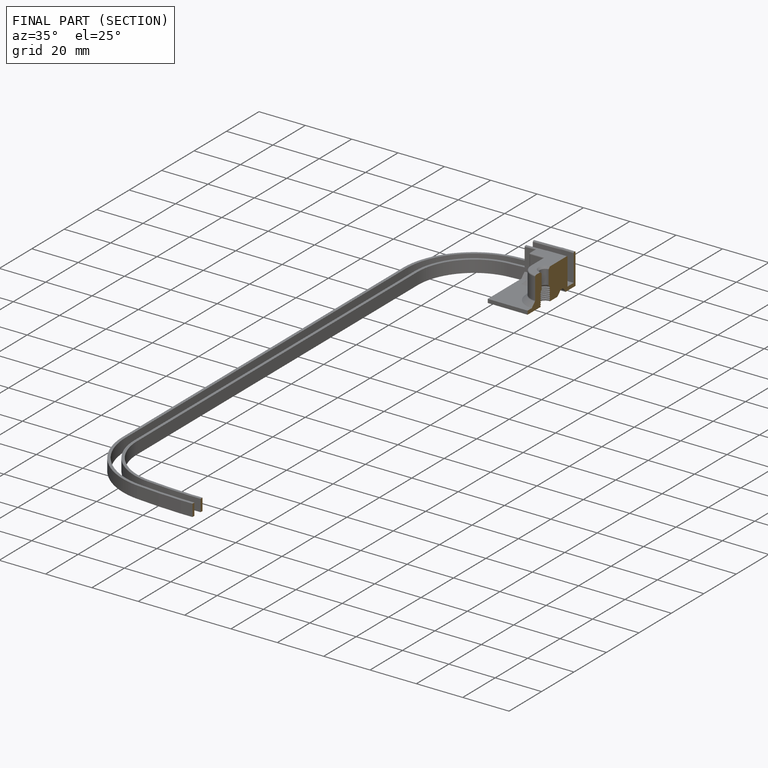
[diagram: finished part — half-section view (interior)]
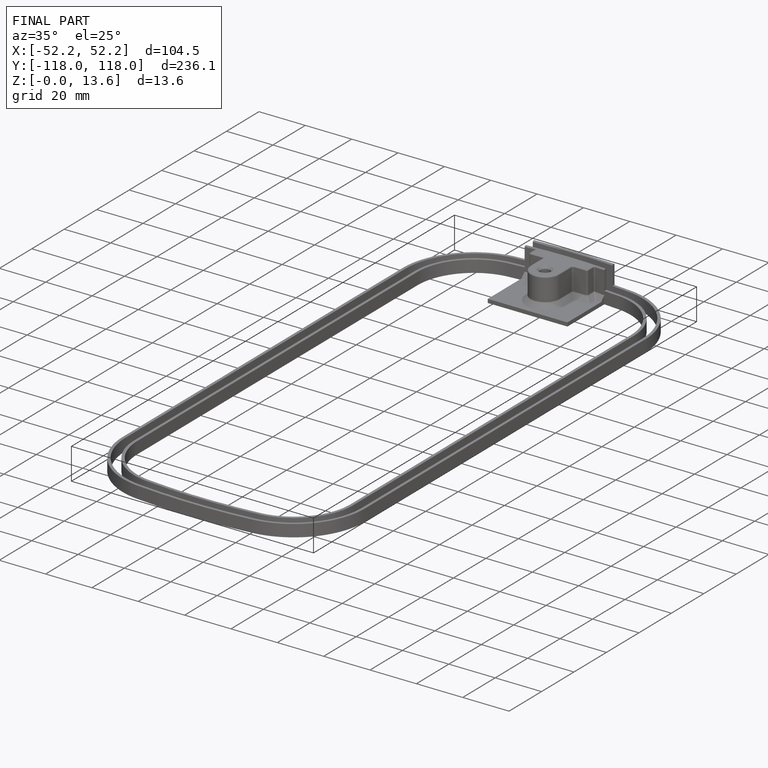
[diagram: finished part — iso view with bounding-box wireframe]
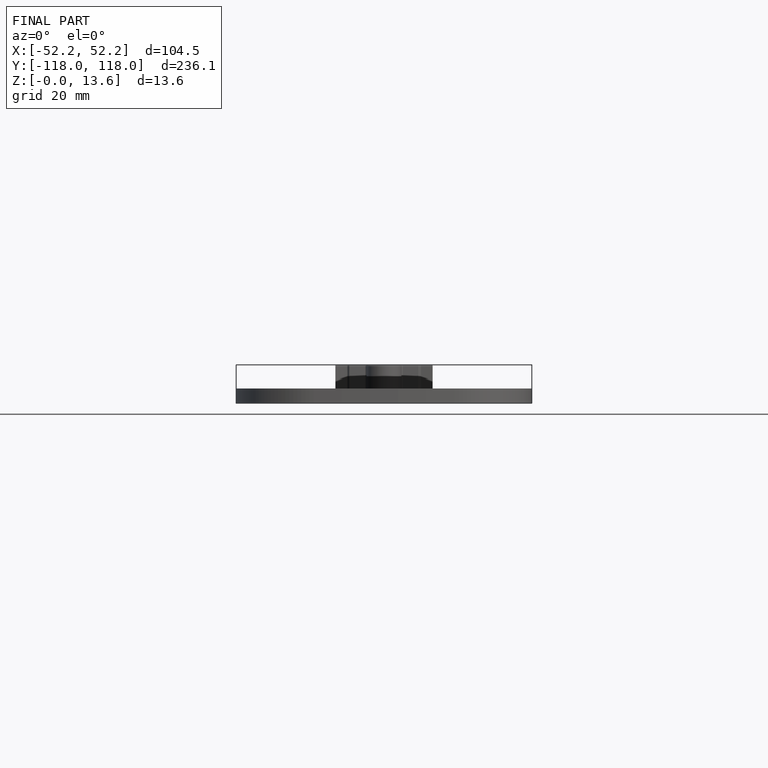
[diagram: finished part — front view with bounding-box wireframe]
